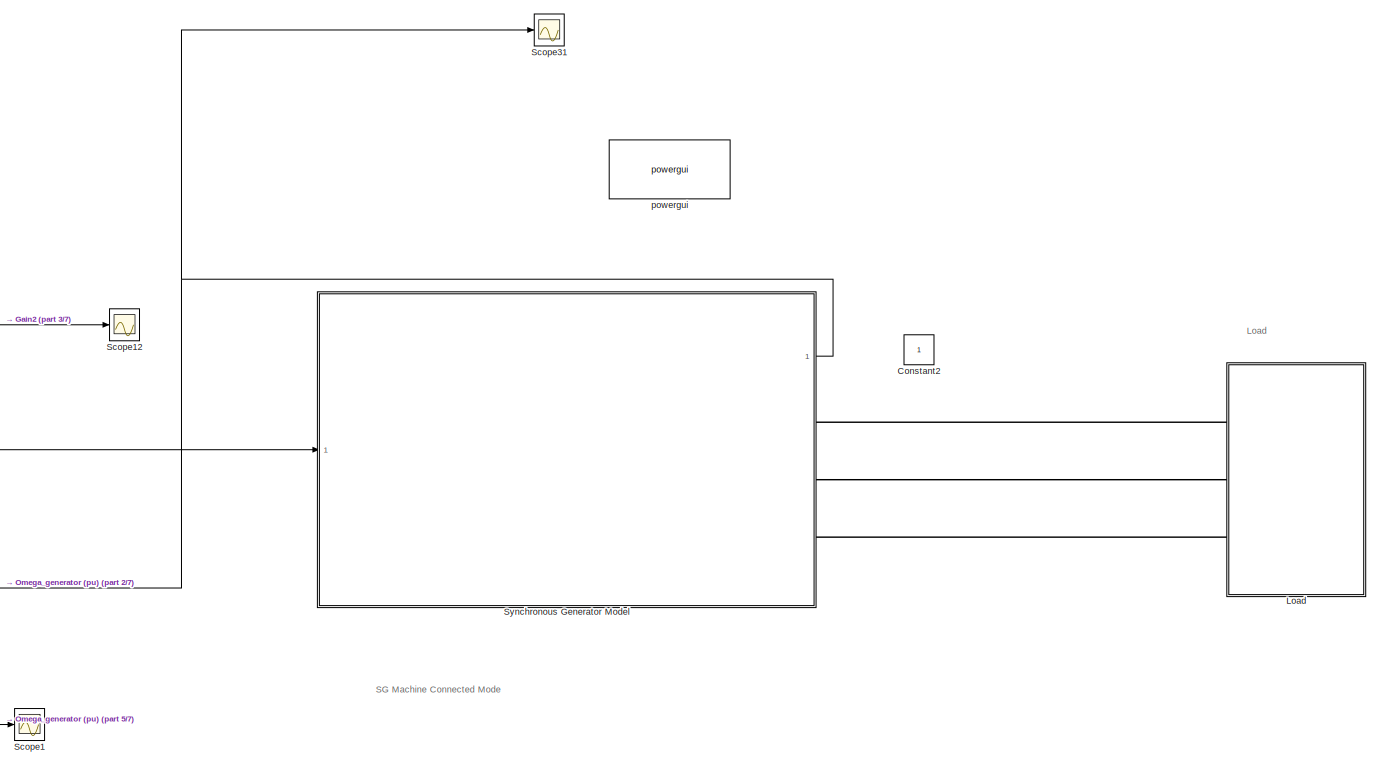
[diagram: root canvas - part 1/7, top right region]
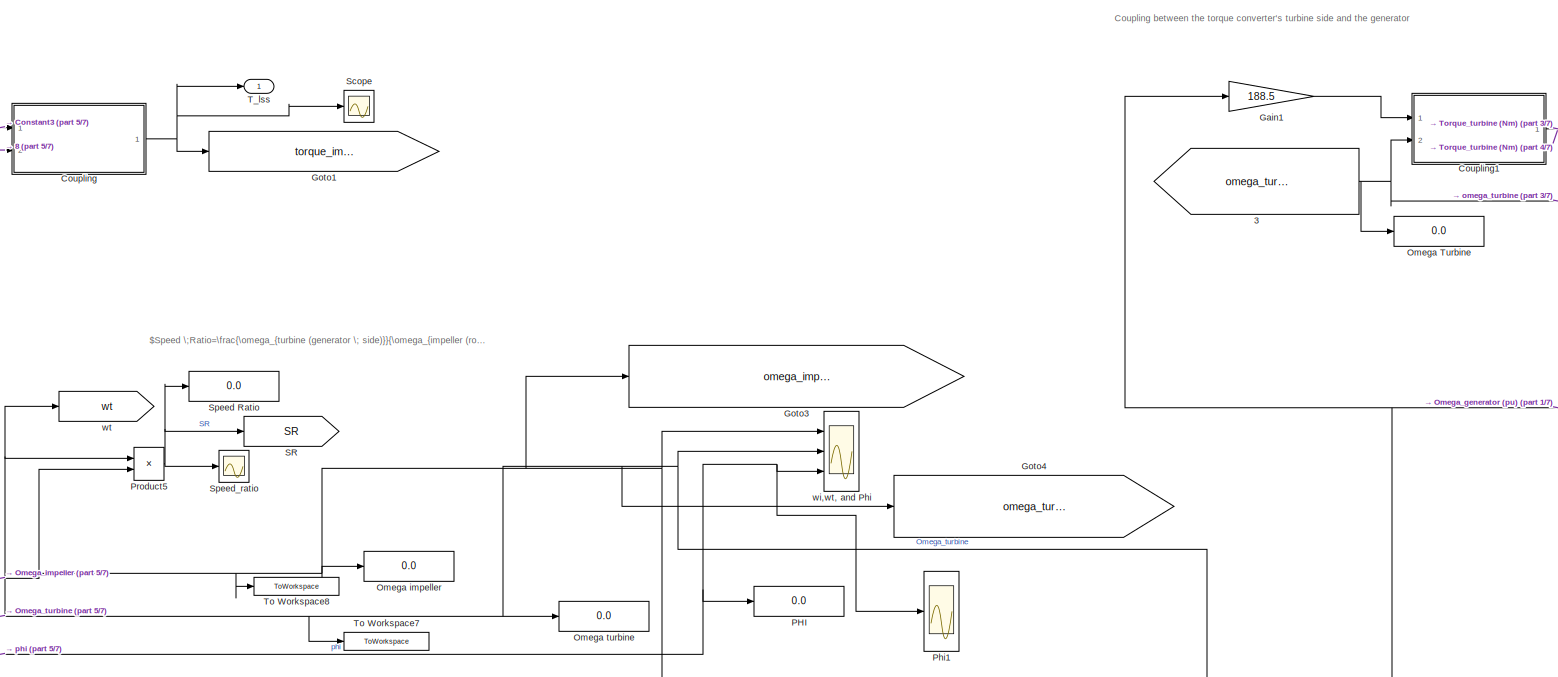
[diagram: root canvas - part 2/7, middle left region]
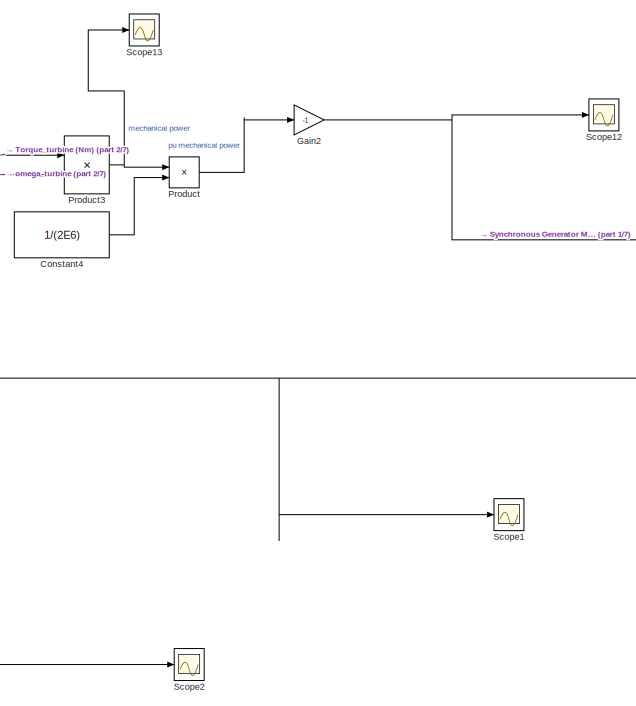
[diagram: root canvas - part 3/7, middle right region]
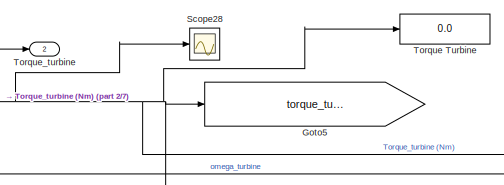
[diagram: root canvas - part 4/7, top center region]
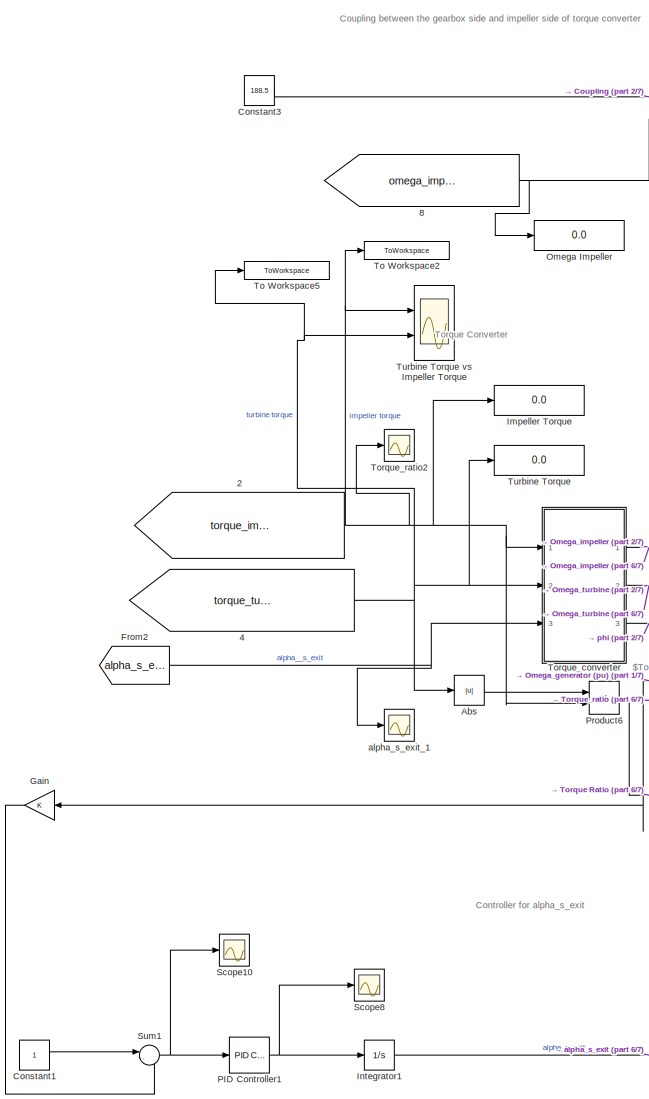
[diagram: root canvas - part 5/7, left side, full height]
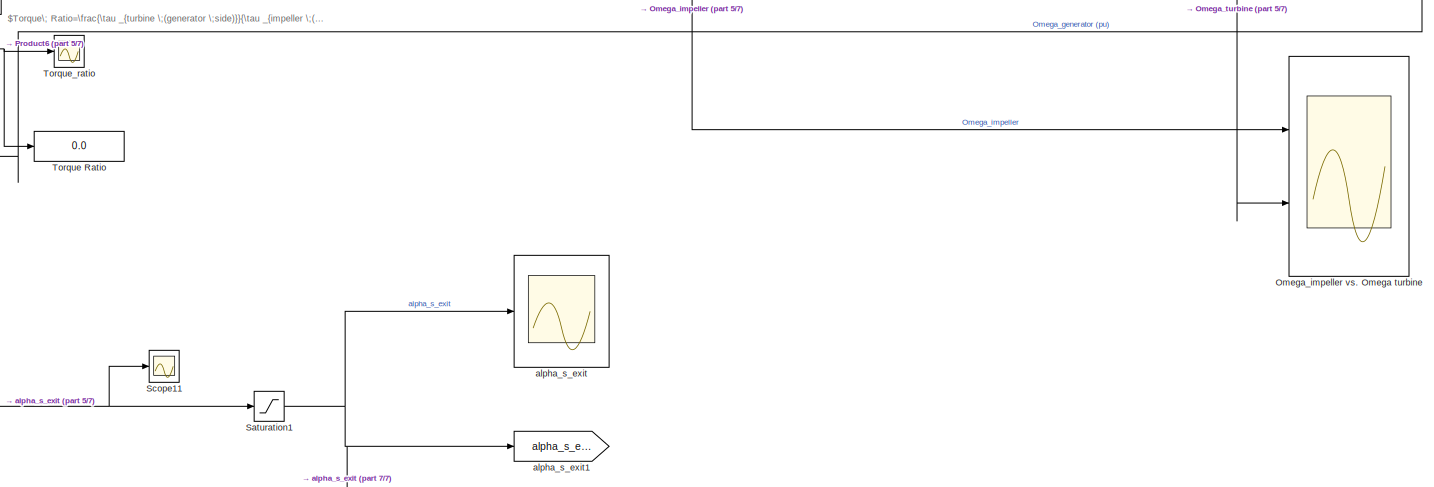
[diagram: root canvas - part 6/7, bottom left region]
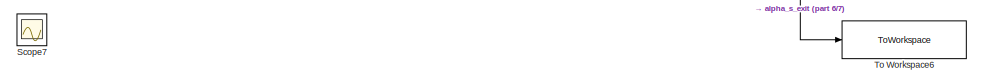
[diagram: root canvas - part 7/7, bottom left region]
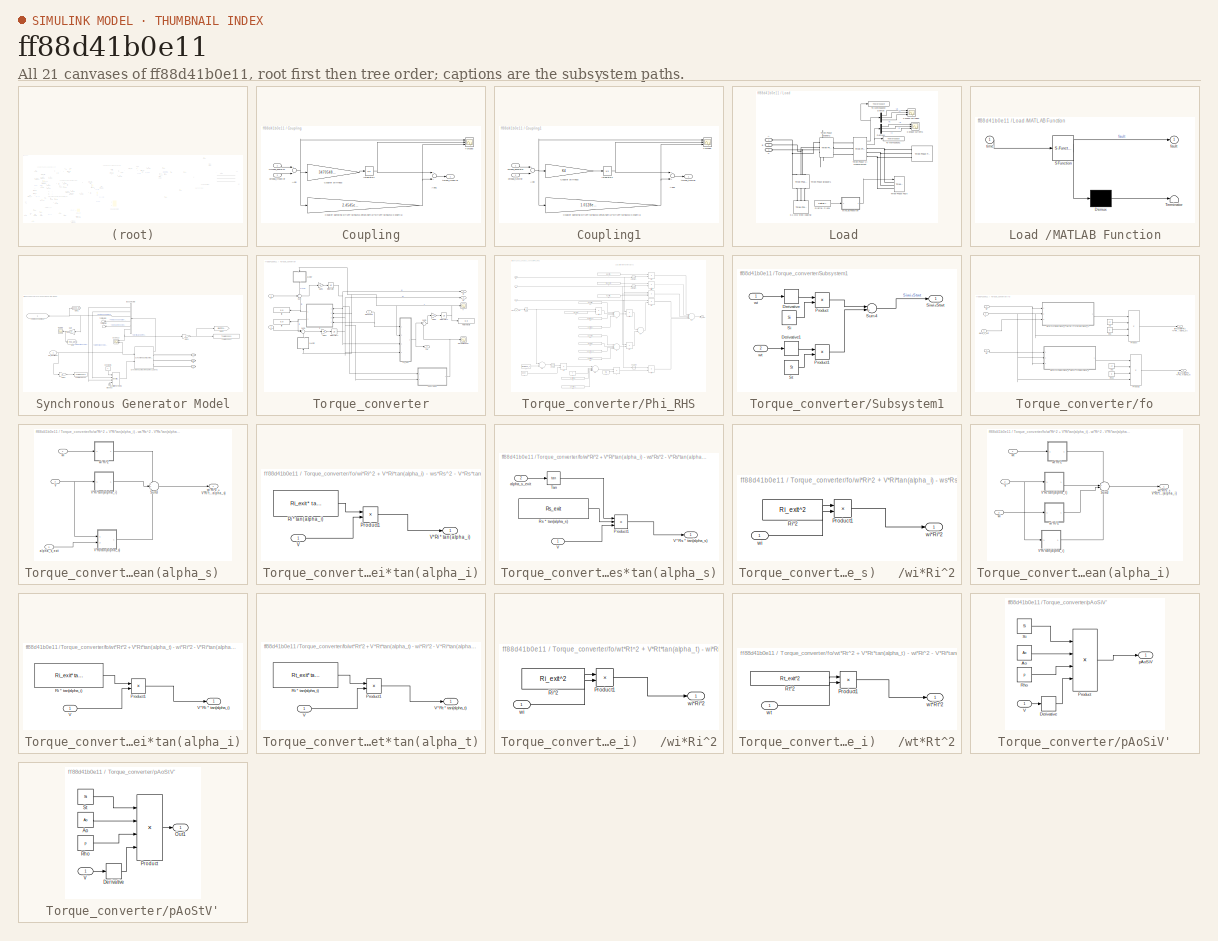
[diagram: thumbnail index - all 21 canvases of the model, root first then tree order]
MODEL slx_ff88d41b0e11
KIND model
CONFIG AbsTol = 1e-2
CONFIG EnableMultiTasking = off
CONFIG FixedStep = auto
CONFIG InitFcn = Ts =2.5e-5;\n\nR_pu = 0.005;\nX_pu = 0.03;\nB_pu = 0.00275;\n\nZ_161 = 259.21;\nZ_44 = 19.36;\nZ_46 = 237.75;\nZ_12_47 = 17.47;\n\nAB_load_data;\nAB_init;
CONFIG MaxStep = 0.005
CONFIG MinStep = auto
CONFIG RelTol = 1e-1
CONFIG SampleTimeConstraint = Unconstrained
CONFIG Solver = VariableStepAuto
CONFIG SolverName = VariableStepAuto
CONFIG StartTime = 0.0
CONFIG StopTime = 50
BLOCK [From]  2
  GotoTag = torque_impeller
BLOCK [From]  3
  GotoTag = omega_turbine
BLOCK [From]  4
  GotoTag = torque_turbine
BLOCK [From]  8
  GotoTag = omega_impeller
BLOCK [Abs] Abs
  SaturateOnIntegerOverflow = off
BLOCK [Constant] Constant1
BLOCK [Constant] Constant2
BLOCK [Constant] Constant3
  Value = 188.5
BLOCK [Constant] Constant4
  Value = 1/(2E6)
BLOCK [SubSystem] Coupling
  Ports = [2, 1]
  RequestExecContextInheritance = off
BLOCK [Sum] Coupling/Add
  InputSameDT = off
  Inputs = +-
  OutDataTypeStr = Inherit: Inherit via internal rule
  Ports = [2, 1]
  SaturateOnIntegerOverflow = off
BLOCK [Sum] Coupling/Add1
  InputSameDT = off
  OutDataTypeStr = Inherit: Inherit via internal rule
  Ports = [2, 1]
  SaturateOnIntegerOverflow = off
BLOCK [Gain] Coupling/Coupler damping DriveTrain5MW.zetaShaft(2)*DriveTrain5MW.Kshaft(1) 
  Gain = 2.4545e+06
  OutDataTypeStr = Inherit: Inherit via internal rule
  ParamDataTypeStr = Inherit: Inherit via internal rule
  SaturateOnIntegerOverflow = off
BLOCK [Gain] Coupling/Coupler stiffness
  Gain = 347054800
  OutDataTypeStr = Inherit: Inherit via internal rule
  ParamDataTypeStr = Inherit: Inherit via internal rule
  SaturateOnIntegerOverflow = off
BLOCK [Integrator] Coupling/Integrator2
  ContinuousStateAttributes = 'torquelowspeedshaft'
  InitialCondition = ti
  Ports = [1, 1]
BLOCK [Inport] Coupling/Omega_gearBox
  IconDisplay = Port number
BLOCK [Scope] Coupling/Torques
  Floating = off
  NumInputPorts = 3
  Ports = [3]
  ScopeSpecificationString = C++SS(StrPVP('Location','[368, 220, 1019, 729]'),StrPVP('Open','off'),MxPVP('AxesTitles',54,'struct(''axes1'',''%<SignalLabel>'',''axes2'',''%<SignalLabel>'',''axes3'',''%<SignalLabel>'')'),MxPVP('ScopeGraphics',57,'struct(''FigureColor'',''[0.905882352941176 0.905882352941176 0.905882352941176]'',''AxesColor'',''[1 1 1]'',''AxesTickColor'',''[0 0 0]'',''LineColors'',''[0 0 1;1 0 1;0 1 1;1 0 0;0 1...<+490ch>
BLOCK [Inport] Coupling/omega_impeller
  IconDisplay = Port number
  Port = 2
BLOCK [Outport] Coupling/torque_impeller
  IconDisplay = Port number
BLOCK [SubSystem] Coupling1
  Ports = [2, 1]
  RequestExecContextInheritance = off
BLOCK [Sum] Coupling1/Add
  InputSameDT = off
  Inputs = +-
  OutDataTypeStr = Inherit: Inherit via internal rule
  Ports = [2, 1]
  SaturateOnIntegerOverflow = off
BLOCK [Sum] Coupling1/Add1
  InputSameDT = off
  OutDataTypeStr = Inherit: Inherit via internal rule
  Ports = [2, 1]
  SaturateOnIntegerOverflow = off
BLOCK [Gain] Coupling1/Coupler damping DriveTrain5MW.zetaShaft(2)*DriveTrain5MW.Kshaft(1) 
  Gain = 1.0128e+05
  OutDataTypeStr = Inherit: Inherit via internal rule
  ParamDataTypeStr = Inherit: Inherit via internal rule
  SaturateOnIntegerOverflow = off
BLOCK [Gain] Coupling1/Coupler stiffness
  Gain = K4
  OutDataTypeStr = Inherit: Inherit via internal rule
  ParamDataTypeStr = Inherit: Inherit via internal rule
  SaturateOnIntegerOverflow = off
BLOCK [Integrator] Coupling1/Integrator2
  ContinuousStateAttributes = 'torquelowspeedshaft'
  InitialCondition = tt
  Ports = [1, 1]
BLOCK [Scope] Coupling1/Torques
  Floating = off
  NumInputPorts = 3
  Ports = [3]
  ScopeSpecificationString = C++SS(StrPVP('Location','[368, 220, 1019, 729]'),StrPVP('Open','off'),MxPVP('AxesTitles',54,'struct(''axes1'',''%<SignalLabel>'',''axes2'',''%<SignalLabel>'',''axes3'',''%<SignalLabel>'')'),MxPVP('ScopeGraphics',57,'struct(''FigureColor'',''[0.905882352941176 0.905882352941176 0.905882352941176]'',''AxesColor'',''[1 1 1]'',''AxesTickColor'',''[0 0 0]'',''LineColors'',''[0 0 1;1 0 1;0 1 1;1 0 0;0 1...<+490ch>
BLOCK [Inport] Coupling1/omega_generator
  IconDisplay = Port number
BLOCK [Inport] Coupling1/omega_turbine
  IconDisplay = Port number
  Port = 2
BLOCK [Outport] Coupling1/torque_turbine
  IconDisplay = Port number
BLOCK [From] From2
  GotoTag = alpha_s_exit
BLOCK [Gain] Gain
  OutDataTypeStr = Inherit: Inherit via internal rule
  ParamDataTypeStr = Inherit: Inherit via internal rule
  SaturateOnIntegerOverflow = off
BLOCK [Gain] Gain1
  Gain = 188.5
  OutDataTypeStr = Inherit: Inherit via internal rule
  ParamDataTypeStr = Inherit: Inherit via internal rule
  SaturateOnIntegerOverflow = off
BLOCK [Gain] Gain2
  Gain = -1
  OutDataTypeStr = Inherit: Inherit via internal rule
  ParamDataTypeStr = Inherit: Inherit via internal rule
  SaturateOnIntegerOverflow = off
BLOCK [Goto] Goto1
  GotoTag = torque_impeller
BLOCK [Goto] Goto3
  GotoTag = omega_impeller
  IconDisplay = Signal name
BLOCK [Goto] Goto4
  GotoTag = omega_turbine
  IconDisplay = Signal name
BLOCK [Goto] Goto5
  GotoTag = torque_turbine
BLOCK [Display] Impeller Torque
  Decimation = 1
  Ports = [1]
BLOCK [Integrator] Integrator1
  InitialCondition = alpha_s_exit_0
  Ports = [1, 1]
BLOCK [SubSystem] Load 
  Ports = [0, 0, 0, 0, 0, 3]
  RequestExecContextInheritance = off
BLOCK [Reference] Load /    REF=powerlib/Elements/Three-Phase
Parallel RLC Load
  AttributesFormatString = \n
  Ports = [0, 0, 0, 0, 0, 3]
  SourceBlock = powerlib/Elements/Three-Phase\nParallel RLC Load
  SourceProductBaseCode = PS
  SourceType = Three-Phase Parallel RLC Load
BLOCK [Reference] Load /0.1 MW step loading  REF=powerlib/Elements/Three-Phase
Parallel RLC Load
  AttributesFormatString = \n
  Ports = [0, 0, 0, 0, 0, 3]
  SourceBlock = powerlib/Elements/Three-Phase\nParallel RLC Load
  SourceProductBaseCode = PS
  SourceType = Three-Phase Parallel RLC Load
BLOCK [Scope] Load /3 phase currents
  Floating = off
  NumInputPorts = 3
  Ports = [3]
  ScopeSpecificationString = Simulink.scopes.TimeScopeBlockCfg('CurrentConfiguration', extmgr.ConfigurationSet(extmgr.Configuration('Core','General UI',true),extmgr.Configuration('Core','Source UI',true),extmgr.Configuration('Sources','WiredSimulink',true,'DataLoggingVariableName','ScopeData2'),extmgr.Configuration('Visuals','Time Domain',true,'SerializedDisplays',{struct('MinYLimReal','-2415.45614','MaxYLimReal','2512.98348'...<+1480ch>
BLOCK [Scope] Load /3 phase voltages
  Floating = off
  NumInputPorts = 3
  Ports = [3]
  ScopeSpecificationString = Simulink.scopes.TimeScopeBlockCfg('CurrentConfiguration', extmgr.ConfigurationSet(extmgr.Configuration('Core','General UI',true),extmgr.Configuration('Core','Source UI',true),extmgr.Configuration('Sources','WiredSimulink',true,'DataLoggingVariableName','ScopeData1'),extmgr.Configuration('Visuals','Time Domain',true,'SerializedDisplays',{struct('MinYLimReal','-3898.0324','MaxYLimReal','4994.66703',...<+1475ch>
BLOCK [PMIOPort] Load /A
  Side = Left
BLOCK [PMIOPort] Load /B
  Port = 2
  Side = Left
BLOCK [PMIOPort] Load /C
  Port = 3
  Side = Left
BLOCK [Demux] Load /Demux
  DisplayOption = bar
  Outputs = 3
  Ports = [1, 3]
BLOCK [Demux] Load /Demux1
  DisplayOption = bar
  Outputs = 3
  Ports = [1, 3]
BLOCK [DigitalClock] Load /Digital Clock
  SampleTime = Ts
BLOCK [SubSystem] Load /MATLAB Function
  ErrorFcn = Stateflow.Translate.translate
  PermitHierarchicalResolution = ExplicitOnly
  Ports = [1, 1]
  RequestExecContextInheritance = off
  SFBlockType = MATLAB Function
  TreatAsAtomicUnit = on
BLOCK [Demux] Load /MATLAB Function/ Demux 
  Outputs = 1
  Ports = [1, 1]
BLOCK [S-Function] Load /MATLAB Function/ SFunction 
  EnableBusSupport = on
  FunctionName = sf_sfun
  PortCounts = [1 2]
  Ports = [1, 2]
  SFcnIsStateOwnerBlock = off
  SFunctionDeploymentMode = off
  Tag = Stateflow S-Function 2
BLOCK [Terminator] Load /MATLAB Function/ Terminator 
BLOCK [Outport] Load /MATLAB Function/fault
  IconDisplay = Port number
BLOCK [Inport] Load /MATLAB Function/time
  IconDisplay = Port number
BLOCK [Reference] Load /Three-Phase Breaker1  REF=powerlib/Elements/Three-Phase Breaker
  Ports = [0, 0, 0, 0, 0, 3, 3]
  SourceBlock = powerlib/Elements/Three-Phase Breaker
  SourceProductBaseCode = PS
  SourceType = Three-Phase Breaker
BLOCK [Reference] Load /Three-Phase Breaker2  REF=powerlib/Elements/Three-Phase Breaker
  Ports = [0, 0, 0, 0, 0, 3, 3]
  SourceBlock = powerlib/Elements/Three-Phase Breaker
  SourceProductBaseCode = PS
  SourceType = Three-Phase Breaker
BLOCK [Reference] Load /Three-Phase Fault  REF=powerlib/Elements/Three-Phase Fault
  Ports = [1, 0, 0, 0, 0, 3]
  SourceBlock = powerlib/Elements/Three-Phase Fault
  SourceProductBaseCode = PS
  SourceProductName = Simscape Electrical
  SourceType = Three-Phase Fault
BLOCK [Reference] Load /Three-Phase V-I Measurement  REF=powerlib/Measurements/Three-Phase
V-I Measurement
  Ports = [0, 2, 0, 0, 0, 3, 3]
  SourceBlock = powerlib/Measurements/Three-Phase\nV-I Measurement
  SourceProductBaseCode = PS
  SourceProductName = Simscape Electrical
  SourceType = Three-Phase VI Measurement
BLOCK [ToWorkspace] Load /To Workspace1
  MaxDataPoints = inf
  Ports = [1]
  SampleTime = -1
  VariableName = Current
BLOCK [ToWorkspace] Load /To Workspace2
  MaxDataPoints = inf
  Ports = [1]
  SampleTime = -1
  VariableName = Voltage
BLOCK [Display] Omega Impeller
  Decimation = 1
  Ports = [1]
BLOCK [Display] Omega Turbine
  Decimation = 1
  Ports = [1]
BLOCK [Display] Omega impeller
  Decimation = 1
  Ports = [1]
BLOCK [Display] Omega turbine
  Decimation = 1
  Ports = [1]
BLOCK [Scope] Omega_impeller vs. Omega turbine
  Floating = off
  NumInputPorts = 2
  Ports = [2]
  ScopeSpecificationString = Simulink.scopes.TimeScopeBlockCfg('CurrentConfiguration', extmgr.ConfigurationSet(extmgr.Configuration('Core','General UI',true),extmgr.Configuration('Core','Source UI',true),extmgr.Configuration('Sources','WiredSimulink',true,'DataLoggingVariableName','ScopeData1'),extmgr.Configuration('Visuals','Time Domain',true,'SerializedDisplays',{struct('MinYLimReal','177.96462','MaxYLimReal','193.9744','YL...<+1638ch>
BLOCK [Display] PHI
  Decimation = 1
  Ports = [1]
BLOCK [Reference] PID Controller1  REF=simulink/Continuous/PID Controller
  Ports = [1, 1]
  SourceBlock = simulink/Continuous/PID Controller
  SourceProductBaseCode = SL
  SourceProductName = Simulink
  SourceType = PID 1dof
BLOCK [Scope] Phi1
  Floating = off
  NumInputPorts = 1
  Ports = [1]
  ScopeSpecificationString = Simulink.scopes.TimeScopeBlockCfg('CurrentConfiguration', extmgr.ConfigurationSet(extmgr.Configuration('Core','General UI',true),extmgr.Configuration('Core','Source UI',true),extmgr.Configuration('Sources','WiredSimulink',true,'DataLoggingVariableName','ScopeData2'),extmgr.Configuration('Visuals','Time Domain',true,'SerializedDisplays',{struct('MinYLimReal','-0.00519','MaxYLimReal','0.04672','YLab...<+1609ch>
BLOCK [Product] Product
  InputSameDT = off
  OutDataTypeStr = Inherit: Inherit via internal rule
  Ports = [2, 1]
  RndMeth = Floor
  SaturateOnIntegerOverflow = off
BLOCK [Product] Product3
  InputSameDT = off
  Inputs = **
  OutDataTypeStr = Inherit: Inherit via internal rule
  Ports = [2, 1]
  RndMeth = Floor
  SaturateOnIntegerOverflow = off
BLOCK [Product] Product5
  InputSameDT = off
  Inputs = */
  OutDataTypeStr = Inherit: Inherit via internal rule
  Ports = [2, 1]
  RndMeth = Floor
  SaturateOnIntegerOverflow = off
BLOCK [Product] Product6
  InputSameDT = off
  Inputs = */
  OutDataTypeStr = Inherit: Inherit via internal rule
  Ports = [2, 1]
  RndMeth = Floor
  SaturateOnIntegerOverflow = off
BLOCK [Goto] SR
  GotoTag = SR
BLOCK [Saturate] Saturation1
  InputPortMap = u0
  LowerLimit = 1.04
  Ports = [1, 1]
  UpperLimit = 1.28
BLOCK [Scope] Scope
  Floating = off
  NumInputPorts = 1
  Ports = [1]
  ScopeSpecificationString = Simulink.scopes.TimeScopeBlockCfg('CurrentConfiguration', extmgr.ConfigurationSet(extmgr.Configuration('Core','General UI',true),extmgr.Configuration('Core','Source UI',true),extmgr.Configuration('Sources','WiredSimulink',true,'DataLoggingVariableName','ScopeData1'),extmgr.Configuration('Visuals','Time Domain',true,'SerializedDisplays',{struct('MinYLimReal','8360.97994','MaxYLimReal','11287.36835'...<+1464ch>
BLOCK [Scope] Scope1
  Floating = off
  NumInputPorts = 1
  Ports = [1]
  ScopeSpecificationString = Simulink.scopes.TimeScopeBlockCfg('CurrentConfiguration', extmgr.ConfigurationSet(extmgr.Configuration('Core','General UI',true),extmgr.Configuration('Core','Source UI',true),extmgr.Configuration('Sources','WiredSimulink',true,'DataLoggingVariableName','ScopeData17'),extmgr.Configuration('Visuals','Time Domain',true,'SerializedDisplays',{struct('MinYLimReal','0.03616','MaxYLimReal','0.08256','YLab...<+1551ch>
BLOCK [Scope] Scope10
  Floating = off
  NumInputPorts = 1
  Ports = [1]
  ScopeSpecificationString = Simulink.scopes.TimeScopeBlockCfg('CurrentConfiguration', extmgr.ConfigurationSet(extmgr.Configuration('Core','General UI',true),extmgr.Configuration('Core','Source UI',true),extmgr.Configuration('Sources','WiredSimulink',true,'DataLoggingVariableName','ScopeData5'),extmgr.Configuration('Visuals','Time Domain',true,'SerializedDisplays',{struct('MinYLimReal','-0.00988','MaxYLimReal','0.00118','YLab...<+1388ch>
BLOCK [Scope] Scope11
  Floating = off
  NumInputPorts = 1
  Ports = [1]
  ScopeSpecificationString = Simulink.scopes.TimeScopeBlockCfg('CurrentConfiguration', extmgr.ConfigurationSet(extmgr.Configuration('Core','General UI',true),extmgr.Configuration('Core','Source UI',true),extmgr.Configuration('Sources','WiredSimulink',true,'DataLoggingVariableName','ScopeData6'),extmgr.Configuration('Visuals','Time Domain',true,'SerializedDisplays',{struct('MinYLimReal','-30.72616','MaxYLimReal','3.96944','YLa...<+1427ch>
BLOCK [Scope] Scope12
  Floating = off
  NumInputPorts = 1
  Ports = [1]
  ScopeSpecificationString = Simulink.scopes.TimeScopeBlockCfg('CurrentConfiguration', extmgr.ConfigurationSet(extmgr.Configuration('Core','General UI',true),extmgr.Configuration('Core','Source UI',true),extmgr.Configuration('Sources','WiredSimulink',true,'DataLoggingVariableName','ScopeData15'),extmgr.Configuration('Visuals','Time Domain',true,'SerializedDisplays',{struct('MinYLimReal','-1100951461995578713225337337102622990...<+1933ch>
BLOCK [Scope] Scope13
  Floating = off
  NumInputPorts = 1
  Ports = [1]
  ScopeSpecificationString = Simulink.scopes.TimeScopeBlockCfg('CurrentConfiguration', extmgr.ConfigurationSet(extmgr.Configuration('Core','General UI',true),extmgr.Configuration('Core','Source UI',true),extmgr.Configuration('Sources','WiredSimulink',true,'DataLoggingVariableName','ScopeData13'),extmgr.Configuration('Visuals','Time Domain',true,'SerializedDisplays',{struct('MinYLimReal','-2299840.97442','MaxYLimReal','-169398...<+1625ch>
BLOCK [Scope] Scope2
  Floating = off
  NumInputPorts = 1
  Ports = [1]
  ScopeSpecificationString = Simulink.scopes.TimeScopeBlockCfg('CurrentConfiguration', extmgr.ConfigurationSet(extmgr.Configuration('Core','General UI',true),extmgr.Configuration('Core','Source UI',true),extmgr.Configuration('Sources','WiredSimulink',true,'DataLoggingVariableName','ScopeData18'),extmgr.Configuration('Visuals','Time Domain',true,'SerializedDisplays',{struct('MinYLimReal','0.03616','MaxYLimReal','0.08256','YLab...<+1551ch>
BLOCK [Scope] Scope28
  Floating = off
  NumInputPorts = 1
  Ports = [1]
  ScopeSpecificationString = Simulink.scopes.TimeScopeBlockCfg('CurrentConfiguration', extmgr.ConfigurationSet(extmgr.Configuration('Core','General UI',true),extmgr.Configuration('Core','Source UI',true),extmgr.Configuration('Sources','WiredSimulink',true,'DataLoggingVariableName','ScopeData14'),extmgr.Configuration('Visuals','Time Domain',true,'SerializedDisplays',{struct('MinYLimReal','-2925.80634','MaxYLimReal','2140.3992'...<+1587ch>
BLOCK [Scope] Scope31
  Floating = off
  NumInputPorts = 1
  Ports = [1]
  ScopeSpecificationString = Simulink.scopes.TimeScopeBlockCfg('CurrentConfiguration', extmgr.ConfigurationSet(extmgr.Configuration('Core','General UI',true),extmgr.Configuration('Core','Source UI',true),extmgr.Configuration('Sources','WiredSimulink',true,'DataLoggingVariableName','ScopeData16'),extmgr.Configuration('Visuals','Time Domain',true,'SerializedDisplays',{struct('MinYLimReal','0.99527','MaxYLimReal','1.00082','YLab...<+1565ch>
BLOCK [Scope] Scope7
  Floating = off
  NumInputPorts = 1
  Ports = [1]
  ScopeSpecificationString = Simulink.scopes.TimeScopeBlockCfg('CurrentConfiguration', extmgr.ConfigurationSet(extmgr.Configuration('Core','General UI',true),extmgr.Configuration('Core','Source UI',true),extmgr.Configuration('Sources','WiredSimulink',true,'DataLoggingVariableName','ScopeData10'),extmgr.Configuration('Visuals','Time Domain',true,'SerializedDisplays',{struct('MinYLimReal','0.99882','MaxYLimReal','1.00988','YLab...<+1425ch>
BLOCK [Scope] Scope8
  Floating = off
  NumInputPorts = 1
  Ports = [1]
  ScopeSpecificationString = Simulink.scopes.TimeScopeBlockCfg('CurrentConfiguration', extmgr.ConfigurationSet(extmgr.Configuration('Core','General UI',true),extmgr.Configuration('Core','Source UI',true),extmgr.Configuration('Sources','WiredSimulink',true,'DataLoggingVariableName','ScopeData11'),extmgr.Configuration('Visuals','Time Domain',true,'SerializedDisplays',{struct('MinYLimReal','-1.32229','MaxYLimReal','0.70344','YLa...<+1445ch>
BLOCK [Display] Speed Ratio
  Decimation = 1
  Ports = [1]
BLOCK [Scope] Speed_ratio
  Floating = off
  NumInputPorts = 1
  Ports = [1]
  ScopeSpecificationString = Simulink.scopes.TimeScopeBlockCfg('CurrentConfiguration', extmgr.ConfigurationSet(extmgr.Configuration('Core','General UI',true),extmgr.Configuration('Core','Source UI',true),extmgr.Configuration('Sources','WiredSimulink',true,'DataLoggingVariableName','ScopeData5'),extmgr.Configuration('Visuals','Time Domain',true,'SerializedDisplays',{struct('MinYLimReal','-0.53288','MaxYLimReal','0.73563','YLab...<+1560ch>
BLOCK [Sum] Sum1
  IconShape = round
  InputSameDT = off
  Inputs = |-+
  OutDataTypeStr = Inherit: Inherit via internal rule
  Ports = [2, 1]
  SaturateOnIntegerOverflow = off
BLOCK [SubSystem] Synchronous Generator Model
  Ports = [1, 1, 0, 0, 0, 0, 3]
  RequestExecContextInheritance = off
BLOCK [Outport] Synchronous Generator Model/<Rotor speed  wm  (pu)>
  IconDisplay = Port number and signal name
BLOCK [PMIOPort] Synchronous Generator Model/A
  Side = Right
BLOCK [PMIOPort] Synchronous Generator Model/B
  Port = 2
  Side = Right
BLOCK [BusSelector] Synchronous Generator Model/Bus Selector3
  OutputAsBus = off
  OutputSignals = dq0 components.Stator voltage  vq (pu),dq0 components.Stator voltage  vd (pu),Mechanical.Rotor speed  wm  (pu),Mechanical.Rotor speed deviation  dw (pu),Output active power   Peo (pu),Mechanical.Electrical power  Pe (pu)
  Ports = [1, 6]
BLOCK [PMIOPort] Synchronous Generator Model/C
  Port = 3
  Side = Right
BLOCK [Constant] Synchronous Generator Model/Constant1
BLOCK [Reference] Synchronous Generator Model/Excitation System2  REF=sps_avr/Excitation System
  Ports = [4, 1]
  SourceBlock = sps_avr/Excitation System
  SourceProductBaseCode = PS
  SourceType = Excitation System
BLOCK [Gain] Synchronous Generator Model/Gain
  Gain = 377/(2*pi)
  OutDataTypeStr = Inherit: Inherit via internal rule
  ParamDataTypeStr = Inherit: Inherit via internal rule
  SaturateOnIntegerOverflow = off
BLOCK [Gain] Synchronous Generator Model/Gain1
  Gain = 2
  OutDataTypeStr = Inherit: Inherit via internal rule
  ParamDataTypeStr = Inherit: Inherit via internal rule
  SaturateOnIntegerOverflow = off
BLOCK [Gain] Synchronous Generator Model/Gain2
  Gain = 2
  OutDataTypeStr = Inherit: Inherit via internal rule
  ParamDataTypeStr = Inherit: Inherit via internal rule
  SaturateOnIntegerOverflow = off
BLOCK [Goto] Synchronous Generator Model/Goto
  GotoTag = freq_gen
  TagVisibility = global
BLOCK [Goto] Synchronous Generator Model/Goto1
  GotoTag = speed_isol
  TagVisibility = global
BLOCK [Goto] Synchronous Generator Model/Goto2
  GotoTag = Electrical_Power
  TagVisibility = global
BLOCK [Ground] Synchronous Generator Model/Ground3
BLOCK [Inport] Synchronous Generator Model/Pm_input (in pu)
  IconDisplay = Port number and signal name
BLOCK [Scope] Synchronous Generator Model/Scope
  Floating = off
  NumInputPorts = 1
  Ports = [1]
  ScopeSpecificationString = Simulink.scopes.TimeScopeBlockCfg('CurrentConfiguration', extmgr.ConfigurationSet(extmgr.Configuration('Core','General UI',true),extmgr.Configuration('Core','Source UI',true),extmgr.Configuration('Sources','WiredSimulink',true,'DataLoggingVariableName','ScopeData1'),extmgr.Configuration('Visuals','Time Domain',true,'SerializedDisplays',{struct('MinYLimReal','52.329','MaxYLimReal','66.3128','YLabel...<+1441ch>
BLOCK [Scope] Synchronous Generator Model/Scope22
  Floating = off
  NumInputPorts = 2
  Ports = [2]
  ScopeSpecificationString = Simulink.scopes.TimeScopeBlockCfg('CurrentConfiguration', extmgr.ConfigurationSet(extmgr.Configuration('Core','General UI',true,'FigureColor',[1 1 1]),extmgr.Configuration('Core','Source UI',true),extmgr.Configuration('Sources','WiredSimulink',true,'DataLoggingVariableName','ScopeData9'),extmgr.Configuration('Visuals','Time Domain',true,'SerializedDisplays',{struct('MinYLimReal','0.01693','MaxYLim...<+1728ch>
BLOCK [Reference] Synchronous Generator Model/Synchronous Machine 8.9 MVA 13.8 kV2  REF=powerlib/Machines/Synchronous Machine
pu Standard
  AttributesFormatString = \n\n
  Ports = [2, 1, 0, 0, 0, 0, 3]
  SourceBlock = powerlib/Machines/Synchronous Machine\npu Standard
  SourceProductBaseCode = PS
  SourceType = Synchronous Machine
BLOCK [Terminator] Synchronous Generator Model/Terminator
BLOCK [Terminator] Synchronous Generator Model/Terminator1
BLOCK [ToWorkspace] Synchronous Generator Model/To Workspace
  FixptAsFi = on
  MaxDataPoints = inf
  Ports = [1]
  SampleTime = 1e-2
  SaveFormat = Timeseries
  VariableName = ElectricalPowerOutFromGenerator
BLOCK [ToWorkspace] Synchronous Generator Model/To Workspace1
  FixptAsFi = on
  MaxDataPoints = inf
  Ports = [1]
  SampleTime = -1
  SaveFormat = Timeseries
  VariableName = MechanicalPowerInputToGenerator
BLOCK [Outport] T_lss
  IconDisplay = Port number
  InitialOutput = Tlss0
BLOCK [ToWorkspace] To Workspace2
  MaxDataPoints = inf
  Ports = [1]
  SampleTime = 1e-2
  VariableName = torque_impeller
BLOCK [ToWorkspace] To Workspace5
  MaxDataPoints = inf
  Ports = [1]
  SampleTime = 1e-2
  VariableName = torque_turbine
BLOCK [ToWorkspace] To Workspace6
  MaxDataPoints = inf
  Ports = [1]
  SampleTime = 1e-2
  VariableName = alpha_s_exit
BLOCK [ToWorkspace] To Workspace7
  MaxDataPoints = inf
  Ports = [1]
  SampleTime = 1e-2
  VariableName = Omega_turbine
BLOCK [ToWorkspace] To Workspace8
  MaxDataPoints = inf
  Ports = [1]
  SampleTime = 1e-2
  VariableName = Omega_impeller
BLOCK [Display] Torque Ratio
  Decimation = 1
  Ports = [1]
BLOCK [Display] Torque Turbine
  Decimation = 1
  Ports = [1]
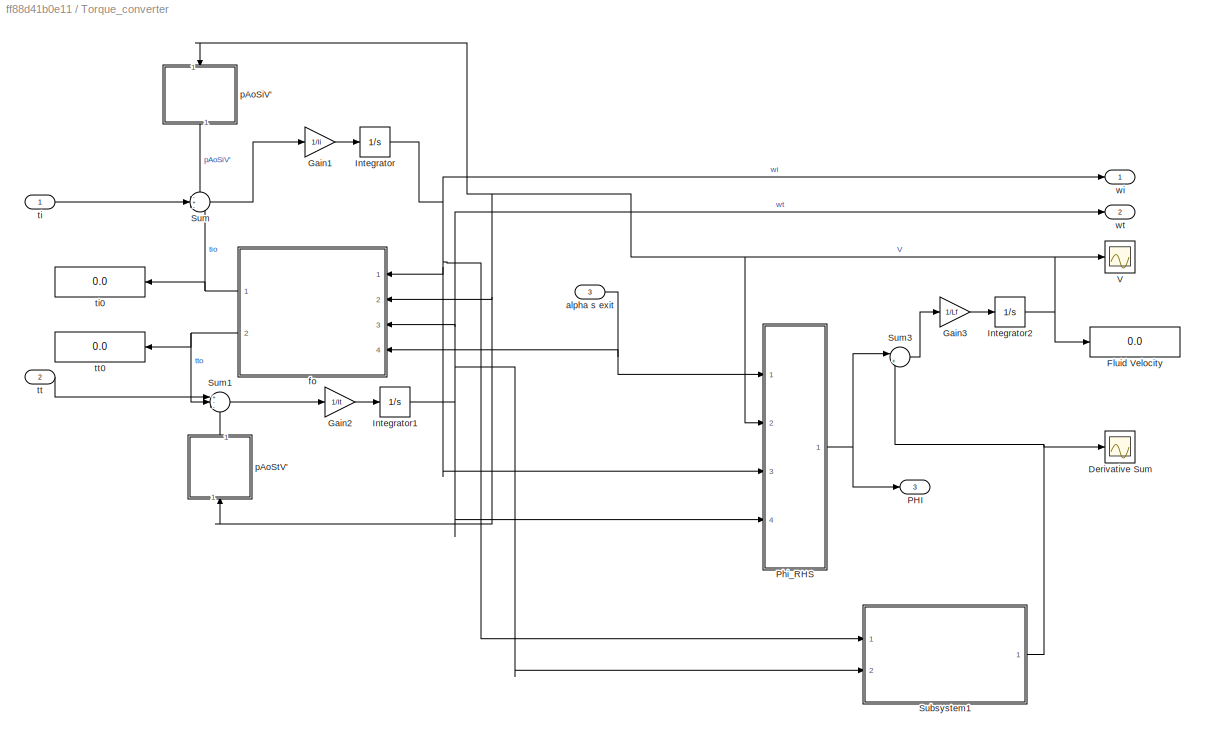
BLOCK [SubSystem] Torque_converter
  Ports = [3, 3]
  RequestExecContextInheritance = off
BLOCK [Scope] Torque_converter/Derivative Sum
  Floating = off
  NumInputPorts = 1
  Ports = [1]
  ScopeSpecificationString = Simulink.scopes.TimeScopeBlockCfg('CurrentConfiguration', extmgr.ConfigurationSet(extmgr.Configuration('Core','General UI',true),extmgr.Configuration('Core','Source UI',true),extmgr.Configuration('Sources','WiredSimulink',true,'DataLoggingVariableName','ScopeData1'),extmgr.Configuration('Visuals','Time Domain',true,'SerializedDisplays',{struct('MinYLimReal','-1814.204','MaxYLimReal','1794.09886','...<+1454ch>
BLOCK [Display] Torque_converter/Fluid Velocity
  Decimation = 1
  Ports = [1]
BLOCK [Gain] Torque_converter/Gain1
  Gain = 1/Ii
  OutDataTypeStr = Inherit: Inherit via internal rule
  ParamDataTypeStr = Inherit: Inherit via internal rule
  SaturateOnIntegerOverflow = off
BLOCK [Gain] Torque_converter/Gain2
  Gain = 1/It
  OutDataTypeStr = Inherit: Inherit via internal rule
  ParamDataTypeStr = Inherit: Inherit via internal rule
  SaturateOnIntegerOverflow = off
BLOCK [Gain] Torque_converter/Gain3
  Gain = 1/Lf
  OutDataTypeStr = Inherit: Inherit via internal rule
  ParamDataTypeStr = Inherit: Inherit via internal rule
  SaturateOnIntegerOverflow = off
BLOCK [Integrator] Torque_converter/Integrator
  InitialCondition = wi_0
  Ports = [1, 1]
BLOCK [Integrator] Torque_converter/Integrator1
  InitialCondition = wt_0
  Ports = [1, 1]
BLOCK [Integrator] Torque_converter/Integrator2
  InitialCondition = V_0
  Ports = [1, 1]
BLOCK [Outport] Torque_converter/PHI
  IconDisplay = Port number
  Port = 3
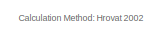
[diagram: Torque_converter/Phi_RHS - part 1/4, top center region]
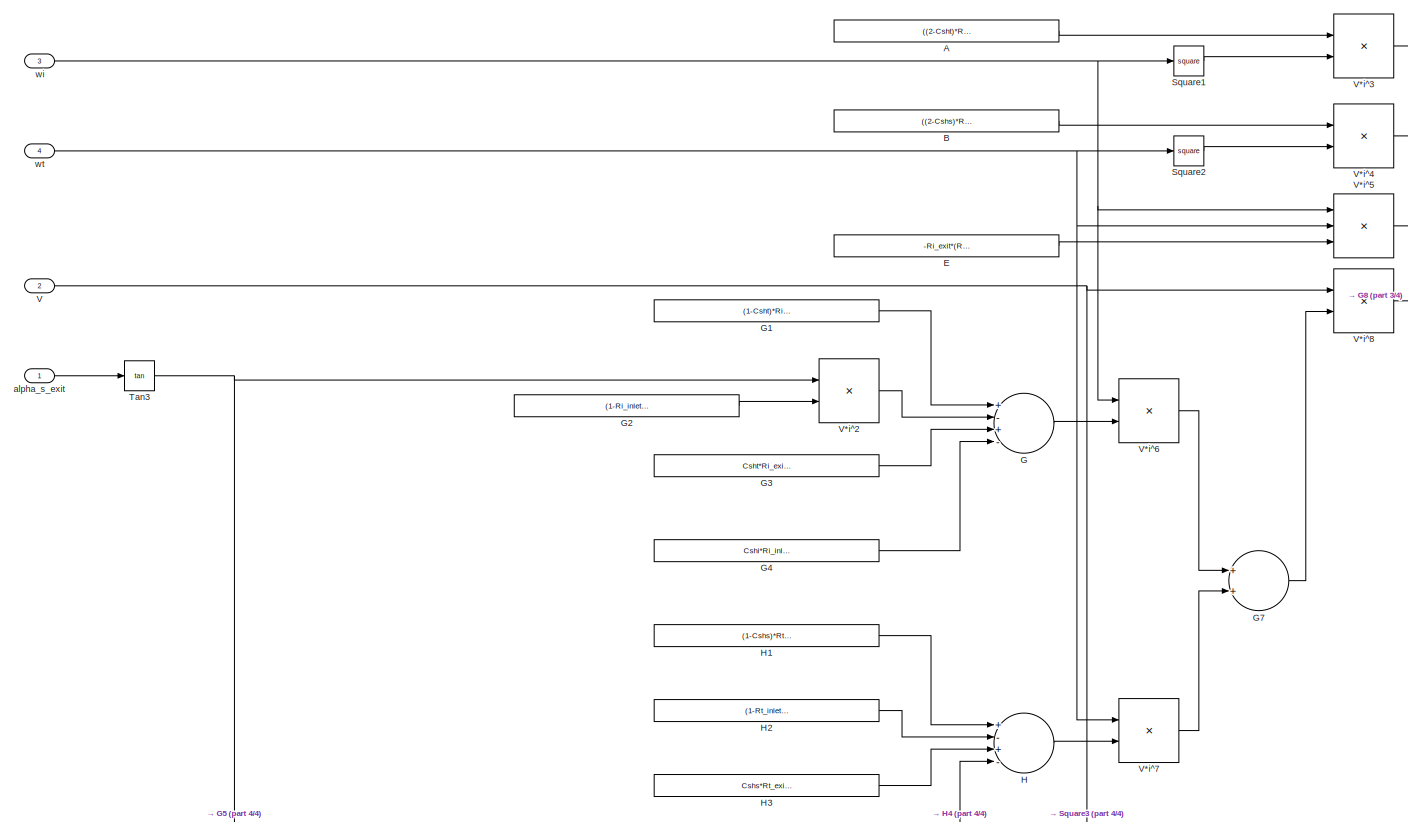
[diagram: Torque_converter/Phi_RHS - part 2/4, full width, middle band]
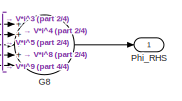
[diagram: Torque_converter/Phi_RHS - part 3/4, middle right region]
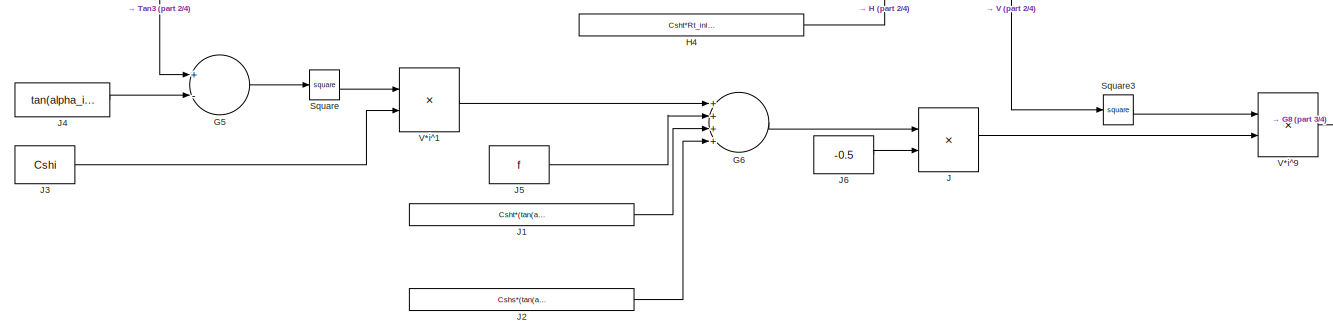
[diagram: Torque_converter/Phi_RHS - part 4/4, bottom center region]
BLOCK [SubSystem] Torque_converter/Phi_RHS
  Ports = [4, 1]
  RequestExecContextInheritance = off
BLOCK [Constant] Torque_converter/Phi_RHS/A
  Value = ((2-Csht)*Ri_exit^2 - Cshi*Ri_inlet^2)/2
BLOCK [Constant] Torque_converter/Phi_RHS/B
  Value = ((2-Cshs)*Rt_exit^2 - Csht*Rt_inlet^2)/2
BLOCK [Constant] Torque_converter/Phi_RHS/E
  Value = -Ri_exit*(Ri_exit-Rt_inlet*Csht)
BLOCK [Sum] Torque_converter/Phi_RHS/G
  InputSameDT = off
  Inputs = +-+-
  OutDataTypeStr = Inherit: Inherit via internal rule
  Ports = [4, 1]
  SaturateOnIntegerOverflow = off
BLOCK [Constant] Torque_converter/Phi_RHS/G1
  Value = (1-Csht)*Ri_exit*tan(alpha_i_exit)
BLOCK [Constant] Torque_converter/Phi_RHS/G2
  Value = (1-Ri_inlet*Cshi/Rs_exit)*Rs_exit
BLOCK [Constant] Torque_converter/Phi_RHS/G3
  Value = Csht*Ri_exit*tan(alpha_t_inlet)
BLOCK [Constant] Torque_converter/Phi_RHS/G4
  Value = Cshi*Ri_inlet*tan(alpha_i_inlet)
BLOCK [Sum] Torque_converter/Phi_RHS/G5
  InputSameDT = off
  Inputs = +-
  OutDataTypeStr = Inherit: Inherit via internal rule
  Ports = [2, 1]
  SaturateOnIntegerOverflow = off
BLOCK [Sum] Torque_converter/Phi_RHS/G6
  InputSameDT = off
  Inputs = ++++
  OutDataTypeStr = Inherit: Inherit via internal rule
  Ports = [4, 1]
  SaturateOnIntegerOverflow = off
BLOCK [Sum] Torque_converter/Phi_RHS/G7
  InputSameDT = off
  OutDataTypeStr = Inherit: Inherit via internal rule
  Ports = [2, 1]
  SaturateOnIntegerOverflow = off
BLOCK [Sum] Torque_converter/Phi_RHS/G8
  InputSameDT = off
  Inputs = +++++
  OutDataTypeStr = Inherit: Inherit via internal rule
  Ports = [5, 1]
  SaturateOnIntegerOverflow = off
BLOCK [Sum] Torque_converter/Phi_RHS/H
  InputSameDT = off
  Inputs = +-+-
  OutDataTypeStr = Inherit: Inherit via internal rule
  Ports = [4, 1]
  SaturateOnIntegerOverflow = off
BLOCK [Constant] Torque_converter/Phi_RHS/H1
  Value = (1-Cshs)*Rt_exit*tan(alpha_t_exit)
BLOCK [Constant] Torque_converter/Phi_RHS/H2
  Value = (1-Rt_inlet*Csht/Ri_exit)*Ri_exit*tan(alpha_i_exit)
BLOCK [Constant] Torque_converter/Phi_RHS/H3
  Value = Cshs*Rt_exit*tan(alpha_s_inlet)
BLOCK [Constant] Torque_converter/Phi_RHS/H4
  Value = Csht*Rt_inlet*tan(alpha_t_inlet)
BLOCK [Product] Torque_converter/Phi_RHS/J
  InputSameDT = off
  OutDataTypeStr = Inherit: Inherit via internal rule
  Ports = [2, 1]
  RndMeth = Floor
  SaturateOnIntegerOverflow = off
BLOCK [Constant] Torque_converter/Phi_RHS/J1
  Value = Csht*(tan(alpha_i_exit) - tan(alpha_t_inlet))^2
BLOCK [Constant] Torque_converter/Phi_RHS/J2
  Value = Cshs*(tan(alpha_t_exit) - tan(alpha_s_inlet))^2
BLOCK [Constant] Torque_converter/Phi_RHS/J3
  Value = Cshi
BLOCK [Constant] Torque_converter/Phi_RHS/J4
  Value = tan(alpha_i_inlet)
BLOCK [Constant] Torque_converter/Phi_RHS/J5
  Value = f
BLOCK [Constant] Torque_converter/Phi_RHS/J6
  Value = -0.5
BLOCK [Outport] Torque_converter/Phi_RHS/Phi_RHS
  IconDisplay = Port number
BLOCK [Math] Torque_converter/Phi_RHS/Square
  Operator = square
  Ports = [1, 1]
  SignedPower = off
BLOCK [Math] Torque_converter/Phi_RHS/Square1
  Operator = square
  Ports = [1, 1]
  SignedPower = off
BLOCK [Math] Torque_converter/Phi_RHS/Square2
  Operator = square
  Ports = [1, 1]
  SignedPower = off
BLOCK [Math] Torque_converter/Phi_RHS/Square3
  Operator = square
  Ports = [1, 1]
  SignedPower = off
BLOCK [Trigonometry] Torque_converter/Phi_RHS/Tan3
  Operator = tan
  Ports = [1, 1]
BLOCK [Inport] Torque_converter/Phi_RHS/V
  IconDisplay = Port number
  Port = 2
BLOCK [Product] Torque_converter/Phi_RHS/V*i^1
  InputSameDT = off
  OutDataTypeStr = Inherit: Inherit via internal rule
  Ports = [2, 1]
  RndMeth = Floor
  SaturateOnIntegerOverflow = off
BLOCK [Product] Torque_converter/Phi_RHS/V*i^2
  InputSameDT = off
  OutDataTypeStr = Inherit: Inherit via internal rule
  Ports = [2, 1]
  RndMeth = Floor
  SaturateOnIntegerOverflow = off
BLOCK [Product] Torque_converter/Phi_RHS/V*i^3
  InputSameDT = off
  OutDataTypeStr = Inherit: Inherit via internal rule
  Ports = [2, 1]
  RndMeth = Floor
  SaturateOnIntegerOverflow = off
BLOCK [Product] Torque_converter/Phi_RHS/V*i^4
  InputSameDT = off
  OutDataTypeStr = Inherit: Inherit via internal rule
  Ports = [2, 1]
  RndMeth = Floor
  SaturateOnIntegerOverflow = off
BLOCK [Product] Torque_converter/Phi_RHS/V*i^5
  InputSameDT = off
  Inputs = 3
  OutDataTypeStr = Inherit: Inherit via internal rule
  Ports = [3, 1]
  RndMeth = Floor
  SaturateOnIntegerOverflow = off
BLOCK [Product] Torque_converter/Phi_RHS/V*i^6
  InputSameDT = off
  OutDataTypeStr = Inherit: Inherit via internal rule
  Ports = [2, 1]
  RndMeth = Floor
  SaturateOnIntegerOverflow = off
BLOCK [Product] Torque_converter/Phi_RHS/V*i^7
  InputSameDT = off
  OutDataTypeStr = Inherit: Inherit via internal rule
  Ports = [2, 1]
  RndMeth = Floor
  SaturateOnIntegerOverflow = off
BLOCK [Product] Torque_converter/Phi_RHS/V*i^8
  InputSameDT = off
  OutDataTypeStr = Inherit: Inherit via internal rule
  Ports = [2, 1]
  RndMeth = Floor
  SaturateOnIntegerOverflow = off
BLOCK [Product] Torque_converter/Phi_RHS/V*i^9
  InputSameDT = off
  OutDataTypeStr = Inherit: Inherit via internal rule
  Ports = [2, 1]
  RndMeth = Floor
  SaturateOnIntegerOverflow = off
BLOCK [Inport] Torque_converter/Phi_RHS/alpha_s_exit
  IconDisplay = Port number
BLOCK [Inport] Torque_converter/Phi_RHS/wi
  IconDisplay = Port number
  Port = 3
BLOCK [Inport] Torque_converter/Phi_RHS/wt
  IconDisplay = Port number
  Port = 4
BLOCK [SubSystem] Torque_converter/Subsystem1
  Ports = [2, 1]
  RequestExecContextInheritance = off
BLOCK [Derivative] Torque_converter/Subsystem1/Derivative
  CoefficientInTFapproximation = 0
BLOCK [Derivative] Torque_converter/Subsystem1/Derivative1
  CoefficientInTFapproximation = 0
BLOCK [Product] Torque_converter/Subsystem1/Product
  InputSameDT = off
  OutDataTypeStr = Inherit: Inherit via internal rule
  Ports = [2, 1]
  RndMeth = Floor
  SaturateOnIntegerOverflow = off
BLOCK [Product] Torque_converter/Subsystem1/Product1
  InputSameDT = off
  OutDataTypeStr = Inherit: Inherit via internal rule
  Ports = [2, 1]
  RndMeth = Floor
  SaturateOnIntegerOverflow = off
BLOCK [Constant] Torque_converter/Subsystem1/Si
  Value = Si
BLOCK [Outport] Torque_converter/Subsystem1/Siwi+Stwt
  IconDisplay = Port number
BLOCK [Constant] Torque_converter/Subsystem1/St
  Value = St
BLOCK [Sum] Torque_converter/Subsystem1/Sum4
  IconShape = round
  InputSameDT = off
  Inputs = |++
  OutDataTypeStr = Inherit: Inherit via internal rule
  Ports = [2, 1]
  SaturateOnIntegerOverflow = off
BLOCK [Inport] Torque_converter/Subsystem1/wi
  IconDisplay = Port number
BLOCK [Inport] Torque_converter/Subsystem1/wt
  IconDisplay = Port number
  Port = 2
BLOCK [Sum] Torque_converter/Sum
  IconShape = round
  InputSameDT = off
  Inputs = -+-
  OutDataTypeStr = Inherit: Inherit via internal rule
  Ports = [3, 1]
  SaturateOnIntegerOverflow = off
BLOCK [Sum] Torque_converter/Sum1
  IconShape = round
  InputSameDT = off
  Inputs = +--
  OutDataTypeStr = Inherit: Inherit via internal rule
  Ports = [3, 1]
  SaturateOnIntegerOverflow = off
BLOCK [Sum] Torque_converter/Sum3
  IconShape = round
  InputSameDT = off
  Inputs = |+-
  OutDataTypeStr = Inherit: Inherit via internal rule
  Ports = [2, 1]
  SaturateOnIntegerOverflow = off
BLOCK [Scope] Torque_converter/V
  Floating = off
  NumInputPorts = 1
  Ports = [1]
  ScopeSpecificationString = Simulink.scopes.TimeScopeBlockCfg('CurrentConfiguration', extmgr.ConfigurationSet(extmgr.Configuration('Core','General UI',true),extmgr.Configuration('Core','Source UI',true),extmgr.Configuration('Sources','WiredSimulink',true,'DataLoggingVariableName','ScopeData3'),extmgr.Configuration('Visuals','Time Domain',true,'SerializedDisplays',{struct('MinYLimReal','6.01493','MaxYLimReal','8.53806','YLabe...<+1451ch>
BLOCK [Inport] Torque_converter/alpha s exit
  IconDisplay = Port number
  Port = 3
BLOCK [SubSystem] Torque_converter/fo
  Ports = [4, 2]
  RequestExecContextInheritance = off
BLOCK [Constant] Torque_converter/fo/Ao
  Value = Ao
BLOCK [Constant] Torque_converter/fo/Ao2
  Value = Ao
BLOCK [Product] Torque_converter/fo/Product
  InputSameDT = off
  Inputs = 4
  OutDataTypeStr = Inherit: Inherit via internal rule
  Ports = [4, 1]
  RndMeth = Floor
  SaturateOnIntegerOverflow = off
BLOCK [Product] Torque_converter/fo/Product2
  InputSameDT = off
  Inputs = 4
  OutDataTypeStr = Inherit: Inherit via internal rule
  Ports = [4, 1]
  RndMeth = Floor
  SaturateOnIntegerOverflow = off
BLOCK [Constant] Torque_converter/fo/Rho
  Value = p
BLOCK [Constant] Torque_converter/fo/Rho2
  Value = p
BLOCK [Inport] Torque_converter/fo/V
  IconDisplay = Port number
  Port = 2
BLOCK [Inport] Torque_converter/fo/alpha_s_exit
  IconDisplay = Port number
  Port = 4
BLOCK [Outport] Torque_converter/fo/tio = pAoV[wi*Ri^2 + V*Ri*tan(alpha_i) - ws*Rs^2 - V*Rs*tan(alpha_s)]
  IconDisplay = Port number
BLOCK [Outport] Torque_converter/fo/tt0 = pAoV[wt*Rt^2 + V*Rt*tan(alpha_t) - wi*Ri^2 - V*Ri*tan(alpha_i)]
  IconDisplay = Port number
  Port = 2
BLOCK [Inport] Torque_converter/fo/wi
  IconDisplay = Port number
BLOCK [SubSystem] Torque_converter/fo/wi*Ri^2 + V*Ri*tan(alpha_i) - ws*Rs^2 - V*Rs*tan(alpha_s)   
  Ports = [3, 1]
  RequestExecContextInheritance = off
BLOCK [Sum] Torque_converter/fo/wi*Ri^2 + V*Ri*tan(alpha_i) - ws*Rs^2 - V*Rs*tan(alpha_s)   /Sum3
  IconShape = round
  InputSameDT = off
  Inputs = ++-
  OutDataTypeStr = Inherit: Inherit via internal rule
  Ports = [3, 1]
  SaturateOnIntegerOverflow = off
BLOCK [Inport] Torque_converter/fo/wi*Ri^2 + V*Ri*tan(alpha_i) - ws*Rs^2 - V*Rs*tan(alpha_s)   /V
  IconDisplay = Port number
  Port = 2
BLOCK [SubSystem] Torque_converter/fo/wi*Ri^2 + V*Ri*tan(alpha_i) - ws*Rs^2 - V*Rs*tan(alpha_s)   /V*Ri*tan(alpha_i)
  Ports = [1, 1]
  RequestExecContextInheritance = off
BLOCK [Product] Torque_converter/fo/wi*Ri^2 + V*Ri*tan(alpha_i) - ws*Rs^2 - V*Rs*tan(alpha_s)   /V*Ri*tan(alpha_i)/Product1
  InputSameDT = off
  OutDataTypeStr = Inherit: Inherit via internal rule
  Ports = [2, 1]
  RndMeth = Floor
  SaturateOnIntegerOverflow = off
BLOCK [Constant] Torque_converter/fo/wi*Ri^2 + V*Ri*tan(alpha_i) - ws*Rs^2 - V*Rs*tan(alpha_s)   /V*Ri*tan(alpha_i)/Ri * tan(alpha_i)
  Value = Ri_exit* tan(alpha_i_exit)
BLOCK [Inport] Torque_converter/fo/wi*Ri^2 + V*Ri*tan(alpha_i) - ws*Rs^2 - V*Rs*tan(alpha_s)   /V*Ri*tan(alpha_i)/V
  IconDisplay = Port number
BLOCK [Outport] Torque_converter/fo/wi*Ri^2 + V*Ri*tan(alpha_i) - ws*Rs^2 - V*Rs*tan(alpha_s)   /V*Ri*tan(alpha_i)/V*Ri * tan(alpha_i)
  IconDisplay = Port number
BLOCK [SubSystem] Torque_converter/fo/wi*Ri^2 + V*Ri*tan(alpha_i) - ws*Rs^2 - V*Rs*tan(alpha_s)   /V*Rs*tan(alpha_s)
  Ports = [2, 1]
  RequestExecContextInheritance = off
BLOCK [Product] Torque_converter/fo/wi*Ri^2 + V*Ri*tan(alpha_i) - ws*Rs^2 - V*Rs*tan(alpha_s)   /V*Rs*tan(alpha_s)/Product1
  InputSameDT = off
  Inputs = 3
  OutDataTypeStr = Inherit: Inherit via internal rule
  Ports = [3, 1]
  RndMeth = Floor
  SaturateOnIntegerOverflow = off
BLOCK [Constant] Torque_converter/fo/wi*Ri^2 + V*Ri*tan(alpha_i) - ws*Rs^2 - V*Rs*tan(alpha_s)   /V*Rs*tan(alpha_s)/Rs * tan(alpha_s)
  Value = Rs_exit
BLOCK [Trigonometry] Torque_converter/fo/wi*Ri^2 + V*Ri*tan(alpha_i) - ws*Rs^2 - V*Rs*tan(alpha_s)   /V*Rs*tan(alpha_s)/Tan
  Operator = tan
  Ports = [1, 1]
BLOCK [Inport] Torque_converter/fo/wi*Ri^2 + V*Ri*tan(alpha_i) - ws*Rs^2 - V*Rs*tan(alpha_s)   /V*Rs*tan(alpha_s)/V
  IconDisplay = Port number
BLOCK [Outport] Torque_converter/fo/wi*Ri^2 + V*Ri*tan(alpha_i) - ws*Rs^2 - V*Rs*tan(alpha_s)   /V*Rs*tan(alpha_s)/V*Rs * tan(alpha_s)
  IconDisplay = Port number
BLOCK [Inport] Torque_converter/fo/wi*Ri^2 + V*Ri*tan(alpha_i) - ws*Rs^2 - V*Rs*tan(alpha_s)   /V*Rs*tan(alpha_s)/alpha_s_exit
  IconDisplay = Port number
  Port = 2
BLOCK [Inport] Torque_converter/fo/wi*Ri^2 + V*Ri*tan(alpha_i) - ws*Rs^2 - V*Rs*tan(alpha_s)   /alpha_s_exit
  IconDisplay = Port number
  Port = 3
BLOCK [Inport] Torque_converter/fo/wi*Ri^2 + V*Ri*tan(alpha_i) - ws*Rs^2 - V*Rs*tan(alpha_s)   /wi
  IconDisplay = Port number
BLOCK [SubSystem] Torque_converter/fo/wi*Ri^2 + V*Ri*tan(alpha_i) - ws*Rs^2 - V*Rs*tan(alpha_s)   /wi*Ri^2
  Ports = [1, 1]
  RequestExecContextInheritance = off
BLOCK [Outport] Torque_converter/fo/wi*Ri^2 + V*Ri*tan(alpha_i) - ws*Rs^2 - V*Rs*tan(alpha_s)   /wi*Ri^2 + V*Ri*tan(alpha_i) - V*Rs*tan(alpha_s)   
  IconDisplay = Port number
BLOCK [Product] Torque_converter/fo/wi*Ri^2 + V*Ri*tan(alpha_i) - ws*Rs^2 - V*Rs*tan(alpha_s)   /wi*Ri^2/Product1
  InputSameDT = off
  OutDataTypeStr = Inherit: Inherit via internal rule
  Ports = [2, 1]
  RndMeth = Floor
  SaturateOnIntegerOverflow = off
BLOCK [Constant] Torque_converter/fo/wi*Ri^2 + V*Ri*tan(alpha_i) - ws*Rs^2 - V*Rs*tan(alpha_s)   /wi*Ri^2/Ri^2
  Value = Ri_exit^2
BLOCK [Inport] Torque_converter/fo/wi*Ri^2 + V*Ri*tan(alpha_i) - ws*Rs^2 - V*Rs*tan(alpha_s)   /wi*Ri^2/wi
  IconDisplay = Port number
BLOCK [Outport] Torque_converter/fo/wi*Ri^2 + V*Ri*tan(alpha_i) - ws*Rs^2 - V*Rs*tan(alpha_s)   /wi*Ri^2/wi*Ri^2
  IconDisplay = Port number
BLOCK [Inport] Torque_converter/fo/wt
  IconDisplay = Port number
  Port = 3
BLOCK [SubSystem] Torque_converter/fo/wt*Rt^2 + V*Rt*tan(alpha_t) - wi*Ri^2 - V*Ri*tan(alpha_i)   
  Ports = [3, 1]
  RequestExecContextInheritance = off
BLOCK [Sum] Torque_converter/fo/wt*Rt^2 + V*Rt*tan(alpha_t) - wi*Ri^2 - V*Ri*tan(alpha_i)   /Sum3
  IconShape = round
  InputSameDT = off
  Inputs = ++--
  OutDataTypeStr = Inherit: Inherit via internal rule
  Ports = [4, 1]
  SaturateOnIntegerOverflow = off
BLOCK [Inport] Torque_converter/fo/wt*Rt^2 + V*Rt*tan(alpha_t) - wi*Ri^2 - V*Ri*tan(alpha_i)   /V
  IconDisplay = Port number
  Port = 2
BLOCK [SubSystem] Torque_converter/fo/wt*Rt^2 + V*Rt*tan(alpha_t) - wi*Ri^2 - V*Ri*tan(alpha_i)   /V*Ri*tan(alpha_i)
  Ports = [1, 1]
  RequestExecContextInheritance = off
BLOCK [Product] Torque_converter/fo/wt*Rt^2 + V*Rt*tan(alpha_t) - wi*Ri^2 - V*Ri*tan(alpha_i)   /V*Ri*tan(alpha_i)/Product1
  InputSameDT = off
  OutDataTypeStr = Inherit: Inherit via internal rule
  Ports = [2, 1]
  RndMeth = Floor
  SaturateOnIntegerOverflow = off
BLOCK [Constant] Torque_converter/fo/wt*Rt^2 + V*Rt*tan(alpha_t) - wi*Ri^2 - V*Ri*tan(alpha_i)   /V*Ri*tan(alpha_i)/Ri * tan(alpha_i)
  Value = Ri_exit* tan(alpha_i_exit)
BLOCK [Inport] Torque_converter/fo/wt*Rt^2 + V*Rt*tan(alpha_t) - wi*Ri^2 - V*Ri*tan(alpha_i)   /V*Ri*tan(alpha_i)/V
  IconDisplay = Port number
BLOCK [Outport] Torque_converter/fo/wt*Rt^2 + V*Rt*tan(alpha_t) - wi*Ri^2 - V*Ri*tan(alpha_i)   /V*Ri*tan(alpha_i)/V*Ri * tan(alpha_i)
  IconDisplay = Port number
BLOCK [SubSystem] Torque_converter/fo/wt*Rt^2 + V*Rt*tan(alpha_t) - wi*Ri^2 - V*Ri*tan(alpha_i)   /V*Rt*tan(alpha_t)
  Ports = [1, 1]
  RequestExecContextInheritance = off
BLOCK [Product] Torque_converter/fo/wt*Rt^2 + V*Rt*tan(alpha_t) - wi*Ri^2 - V*Ri*tan(alpha_i)   /V*Rt*tan(alpha_t)/Product1
  InputSameDT = off
  OutDataTypeStr = Inherit: Inherit via internal rule
  Ports = [2, 1]
  RndMeth = Floor
  SaturateOnIntegerOverflow = off
BLOCK [Constant] Torque_converter/fo/wt*Rt^2 + V*Rt*tan(alpha_t) - wi*Ri^2 - V*Ri*tan(alpha_i)   /V*Rt*tan(alpha_t)/Rt * tan(alpha_t)
  Value = Rt_exit* tan(alpha_t_exit)
BLOCK [Inport] Torque_converter/fo/wt*Rt^2 + V*Rt*tan(alpha_t) - wi*Ri^2 - V*Ri*tan(alpha_i)   /V*Rt*tan(alpha_t)/V
  IconDisplay = Port number
BLOCK [Outport] Torque_converter/fo/wt*Rt^2 + V*Rt*tan(alpha_t) - wi*Ri^2 - V*Ri*tan(alpha_i)   /V*Rt*tan(alpha_t)/V*Rt * tan(alpha_t)
  IconDisplay = Port number
BLOCK [Inport] Torque_converter/fo/wt*Rt^2 + V*Rt*tan(alpha_t) - wi*Ri^2 - V*Ri*tan(alpha_i)   /wi
  IconDisplay = Port number
  Port = 3
BLOCK [SubSystem] Torque_converter/fo/wt*Rt^2 + V*Rt*tan(alpha_t) - wi*Ri^2 - V*Ri*tan(alpha_i)   /wi*Ri^2
  Ports = [1, 1]
  RequestExecContextInheritance = off
BLOCK [Product] Torque_converter/fo/wt*Rt^2 + V*Rt*tan(alpha_t) - wi*Ri^2 - V*Ri*tan(alpha_i)   /wi*Ri^2/Product1
  InputSameDT = off
  OutDataTypeStr = Inherit: Inherit via internal rule
  Ports = [2, 1]
  RndMeth = Floor
  SaturateOnIntegerOverflow = off
BLOCK [Constant] Torque_converter/fo/wt*Rt^2 + V*Rt*tan(alpha_t) - wi*Ri^2 - V*Ri*tan(alpha_i)   /wi*Ri^2/Ri^2
  Value = Ri_exit^2
BLOCK [Inport] Torque_converter/fo/wt*Rt^2 + V*Rt*tan(alpha_t) - wi*Ri^2 - V*Ri*tan(alpha_i)   /wi*Ri^2/wi
  IconDisplay = Port number
BLOCK [Outport] Torque_converter/fo/wt*Rt^2 + V*Rt*tan(alpha_t) - wi*Ri^2 - V*Ri*tan(alpha_i)   /wi*Ri^2/wi*Ri^2
  IconDisplay = Port number
BLOCK [Inport] Torque_converter/fo/wt*Rt^2 + V*Rt*tan(alpha_t) - wi*Ri^2 - V*Ri*tan(alpha_i)   /wt
  IconDisplay = Port number
BLOCK [SubSystem] Torque_converter/fo/wt*Rt^2 + V*Rt*tan(alpha_t) - wi*Ri^2 - V*Ri*tan(alpha_i)   /wt*Rt^2
  Ports = [1, 1]
  RequestExecContextInheritance = off
BLOCK [Outport] Torque_converter/fo/wt*Rt^2 + V*Rt*tan(alpha_t) - wi*Ri^2 - V*Ri*tan(alpha_i)   /wt*Rt^2 + V*Rt*tan(alpha_t) - wi*Ri^2 - V*Ri*tan(alpha_i)   
  IconDisplay = Port number
BLOCK [Product] Torque_converter/fo/wt*Rt^2 + V*Rt*tan(alpha_t) - wi*Ri^2 - V*Ri*tan(alpha_i)   /wt*Rt^2/Product1
  InputSameDT = off
  OutDataTypeStr = Inherit: Inherit via internal rule
  Ports = [2, 1]
  RndMeth = Floor
  SaturateOnIntegerOverflow = off
BLOCK [Constant] Torque_converter/fo/wt*Rt^2 + V*Rt*tan(alpha_t) - wi*Ri^2 - V*Ri*tan(alpha_i)   /wt*Rt^2/Rt^2
  Value = Rt_exit^2
BLOCK [Inport] Torque_converter/fo/wt*Rt^2 + V*Rt*tan(alpha_t) - wi*Ri^2 - V*Ri*tan(alpha_i)   /wt*Rt^2/wt
  IconDisplay = Port number
BLOCK [Outport] Torque_converter/fo/wt*Rt^2 + V*Rt*tan(alpha_t) - wi*Ri^2 - V*Ri*tan(alpha_i)   /wt*Rt^2/wt*Rt^2
  IconDisplay = Port number
BLOCK [SubSystem] Torque_converter/pAoSiV'
  Ports = [1, 1]
  RequestExecContextInheritance = off
BLOCK [Constant] Torque_converter/pAoSiV'/Ao
  Value = Ao
BLOCK [Derivative] Torque_converter/pAoSiV'/Derivative
  CoefficientInTFapproximation = 0
BLOCK [Product] Torque_converter/pAoSiV'/Product
  InputSameDT = off
  Inputs = 4
  OutDataTypeStr = Inherit: Inherit via internal rule
  Ports = [4, 1]
  RndMeth = Floor
  SaturateOnIntegerOverflow = off
BLOCK [Constant] Torque_converter/pAoSiV'/Rho
  Value = p
BLOCK [Constant] Torque_converter/pAoSiV'/Si
  Value = Si
BLOCK [Inport] Torque_converter/pAoSiV'/V
  IconDisplay = Port number
BLOCK [Outport] Torque_converter/pAoSiV'/pAoSiV
  IconDisplay = Port number
BLOCK [SubSystem] Torque_converter/pAoStV'
  Ports = [1, 1]
  RequestExecContextInheritance = off
BLOCK [Constant] Torque_converter/pAoStV'/Ao
  Value = Ao
BLOCK [Derivative] Torque_converter/pAoStV'/Derivative
  CoefficientInTFapproximation = 0
BLOCK [Outport] Torque_converter/pAoStV'/Out1
  IconDisplay = Port number
BLOCK [Product] Torque_converter/pAoStV'/Product
  InputSameDT = off
  Inputs = 4
  OutDataTypeStr = Inherit: Inherit via internal rule
  Ports = [4, 1]
  RndMeth = Floor
  SaturateOnIntegerOverflow = off
BLOCK [Constant] Torque_converter/pAoStV'/Rho
  Value = p
BLOCK [Constant] Torque_converter/pAoStV'/St
  Value = St
BLOCK [Inport] Torque_converter/pAoStV'/V
  IconDisplay = Port number
BLOCK [Inport] Torque_converter/ti
  IconDisplay = Port number
BLOCK [Display] Torque_converter/ti0
  Decimation = 1
  Ports = [1]
BLOCK [Inport] Torque_converter/tt
  IconDisplay = Port number
  Port = 2
BLOCK [Display] Torque_converter/tt0
  Decimation = 1
  Ports = [1]
BLOCK [Outport] Torque_converter/wi
  IconDisplay = Port number
BLOCK [Outport] Torque_converter/wt
  IconDisplay = Port number
  Port = 2
BLOCK [Scope] Torque_ratio
  Floating = off
  NumInputPorts = 1
  Ports = [1]
  ScopeSpecificationString = Simulink.scopes.TimeScopeBlockCfg('CurrentConfiguration', extmgr.ConfigurationSet(extmgr.Configuration('Core','General UI',true),extmgr.Configuration('Core','Source UI',true),extmgr.Configuration('Sources','WiredSimulink',true,'DataLoggingVariableName','ScopeData6'),extmgr.Configuration('Visuals','Time Domain',true,'SerializedDisplays',{struct('MinYLimReal','-184815.93532','MaxYLimReal','294443.31...<+1596ch>
BLOCK [Scope] Torque_ratio2
  Floating = off
  NumInputPorts = 1
  Ports = [1]
  ScopeSpecificationString = Simulink.scopes.TimeScopeBlockCfg('CurrentConfiguration', extmgr.ConfigurationSet(extmgr.Configuration('Core','General UI',true),extmgr.Configuration('Core','Source UI',true),extmgr.Configuration('Sources','WiredSimulink',true,'DataLoggingVariableName','ScopeData1'),extmgr.Configuration('Visuals','Time Domain',true,'SerializedDisplays',{struct('MinYLimReal','-6879369.19027','MaxYLimReal','62129886...<+1607ch>
BLOCK [Outport] Torque_turbine
  IconDisplay = Port number
  InitialOutput = Tlss0
  Port = 2
BLOCK [Display] Turbine Torque
  Decimation = 1
  Ports = [1]
BLOCK [Scope] Turbine Torque vs Impeller Torque
  Floating = off
  NumInputPorts = 2
  Ports = [2]
  ScopeSpecificationString = Simulink.scopes.TimeScopeBlockCfg('CurrentConfiguration', extmgr.ConfigurationSet(extmgr.Configuration('Core','General UI',true),extmgr.Configuration('Core','Source UI',true),extmgr.Configuration('Sources','WiredSimulink',true,'DataLoggingVariableName','ScopeData4'),extmgr.Configuration('Visuals','Time Domain',true,'SerializedDisplays',{struct('MinYLimReal','8697.09931','MaxYLimReal','11132.04394'...<+1664ch>
BLOCK [Scope] alpha_s_exit
  Floating = off
  NumInputPorts = 1
  Ports = [1]
  ScopeSpecificationString = Simulink.scopes.TimeScopeBlockCfg('CurrentConfiguration', extmgr.ConfigurationSet(extmgr.Configuration('Core','General UI',true),extmgr.Configuration('Core','Source UI',true),extmgr.Configuration('Sources','WiredSimulink',true,'DataLoggingVariableName','ScopeData9'),extmgr.Configuration('Visuals','Time Domain',true,'SerializedDisplays',{struct('MinYLimReal','1.15038','MaxYLimReal','1.15367','YLabe...<+1451ch>
BLOCK [Goto] alpha_s_exit1
  GotoTag = alpha_s_exit
BLOCK [Scope] alpha_s_exit_1
  Floating = off
  NumInputPorts = 1
  Ports = [1]
  ScopeSpecificationString = Simulink.scopes.TimeScopeBlockCfg('CurrentConfiguration', extmgr.ConfigurationSet(extmgr.Configuration('Core','General UI',true),extmgr.Configuration('Core','Source UI',true),extmgr.Configuration('Sources','WiredSimulink',true,'DataLoggingVariableName','ScopeData2'),extmgr.Configuration('Visuals','Time Domain',true,'SerializedDisplays',{struct('MinYLimReal','0.13099','MaxYLimReal','2.13099','YLabe...<+1559ch>
BLOCK [Reference] powergui  REF=powerlib/powergui
  Ports = []
  Priority = 1
  SourceBlock = powerlib/powergui
  SourceProductBaseCode = PS
  SourceProductName = Simscape Electrical
  SourceType = PSB option menu block
BLOCK [Scope] wi,wt, and Phi
  Floating = off
  NumInputPorts = 3
  Ports = [3]
  ScopeSpecificationString = Simulink.scopes.TimeScopeBlockCfg('CurrentConfiguration', extmgr.ConfigurationSet(extmgr.Configuration('Core','General UI',true),extmgr.Configuration('Core','Source UI',true),extmgr.Configuration('Sources','WiredSimulink',true,'DataLoggingVariableName','ScopeData3'),extmgr.Configuration('Visuals','Time Domain',true,'SerializedDisplays',{struct('MinYLimReal','188.41673','MaxYLimReal','189.0047','YL...<+1616ch>
BLOCK [Goto] wt
  GotoTag = wt
ANNOTATION (root): Controller for alpha_s_exit
ANNOTATION (root): Load
ANNOTATION (root): $Speed \;Ratio=\frac{\omega_{turbine (generator \; side)}}{\omega_{impeller (rotor\; side))}}$
ANNOTATION (root): $Torque\; Ratio=\frac{\tau _{turbine \;(generator \;side)}}{\tau _{impeller \;(rotor\; side))}}$
ANNOTATION (root): Coupling between the gearbox side and impeller side of torque converter
ANNOTATION (root): Coupling between the torque converter's turbine side and the generator
ANNOTATION (root): SG Machine Connected Mode
ANNOTATION (root): Torque Converter
ANNOTATION Torque_converter/Phi_RHS: Calculation Method: Hrovat 2002
NET  2:1 -> Impeller Torque:1, Product6:2, To Workspace2:1, Torque_converter:1, Torque_ratio2:1, Turbine Torque vs Impeller Torque:1
NET  3:1 -> Coupling1:2, Omega Turbine:1, Product3:2
NET  4:1 -> Abs:1, To Workspace5:1, Torque_converter:2, Turbine Torque vs Impeller Torque:2, Turbine Torque:1
NET  8:1 -> Coupling:2, Omega Impeller:1
LINE Abs:1 -> Product6:1
LINE Constant1:1 -> Sum1:1
LINE Constant3:1 -> Coupling:1
LINE Constant4:1 -> Product:2
LINE Coupling/Add1:1 -> Coupling/torque_impeller:1
NET Coupling/Add:1 -> Coupling/Coupler damping DriveTrain5MW.zetaShaft(2)*DriveTrain5MW.Kshaft(1) :1, Coupling/Coupler stiffness:1, Coupling/Torques:1
NET Coupling/Coupler damping DriveTrain5MW.zetaShaft(2)*DriveTrain5MW.Kshaft(1) :1 -> Coupling/Add1:2, Coupling/Torques:3
LINE Coupling/Coupler stiffness:1 -> Coupling/Integrator2:1
NET Coupling/Integrator2:1 -> Coupling/Add1:1, Coupling/Torques:2
LINE Coupling/Omega_gearBox:1 -> Coupling/Add:1
LINE Coupling/omega_impeller:1 -> Coupling/Add:2
LINE Coupling1/Add1:1 -> Coupling1/torque_turbine:1
NET Coupling1/Add:1 -> Coupling1/Coupler damping DriveTrain5MW.zetaShaft(2)*DriveTrain5MW.Kshaft(1) :1, Coupling1/Coupler stiffness:1, Coupling1/Torques:1
NET Coupling1/Coupler damping DriveTrain5MW.zetaShaft(2)*DriveTrain5MW.Kshaft(1) :1 -> Coupling1/Add1:2, Coupling1/Torques:3
LINE Coupling1/Coupler stiffness:1 -> Coupling1/Integrator2:1
NET Coupling1/Integrator2:1 -> Coupling1/Add1:1, Coupling1/Torques:2
LINE Coupling1/omega_generator:1 -> Coupling1/Add:1
LINE Coupling1/omega_turbine:1 -> Coupling1/Add:2
NET Coupling1:1 -> Goto5:1, Product3:1, Scope28:1, Scope2:1, Torque Turbine:1, Torque_turbine:1
NET Coupling:1 -> Goto1:1, Scope:1, T_lss:1
NET From2:1 -> Torque_converter:3, alpha_s_exit_1:1
LINE Gain1:1 -> Coupling1:1
NET Gain2:1 -> Scope12:1, Synchronous Generator Model:1
LINE Gain:1 -> Sum1:2
NET Integrator1:1 -> Saturation1:1, Scope11:1
LINE Load /Demux1:1 -> Load /3 phase currents:1
LINE Load /Demux1:2 -> Load /3 phase currents:2
LINE Load /Demux1:3 -> Load /3 phase currents:3
LINE Load /Demux:1 -> Load /3 phase voltages:1
LINE Load /Demux:2 -> Load /3 phase voltages:2
LINE Load /Demux:3 -> Load /3 phase voltages:3
LINE Load /Digital Clock:1 -> Load /MATLAB Function:1
LINE Load /MATLAB Function:1 -> Load /Three-Phase Fault:1
NET Load /Three-Phase V-I Measurement:1 -> Load /Demux:1, Load /To Workspace2:1
NET Load /Three-Phase V-I Measurement:2 -> Load /Demux1:1, Load /To Workspace1:1
NET PID Controller1:1 -> Integrator1:1, Scope8:1
NET Product3:1 -> Product:1, Scope13:1
NET Product5:1 -> SR:1, Speed Ratio:1, Speed_ratio:1
NET Product6:1 -> Torque Ratio:1, Torque_ratio:1
LINE Product:1 -> Gain2:1
NET Saturation1:1 -> To Workspace6:1, alpha_s_exit1:1, alpha_s_exit:1
NET Sum1:1 -> PID Controller1:1, Scope10:1
LINE Synchronous Generator Model/Bus Selector3:1 -> Synchronous Generator Model/Excitation System2:3
LINE Synchronous Generator Model/Bus Selector3:2 -> Synchronous Generator Model/Excitation System2:2
NET Synchronous Generator Model/Bus Selector3:3 -> Synchronous Generator Model/<Rotor speed  wm  (pu)>:1, Synchronous Generator Model/Gain:1, Synchronous Generator Model/Goto1:1
LINE Synchronous Generator Model/Bus Selector3:4 -> Synchronous Generator Model/Terminator1:1
LINE Synchronous Generator Model/Bus Selector3:5 -> Synchronous Generator Model/Terminator:1
NET Synchronous Generator Model/Bus Selector3:6 -> Synchronous Generator Model/Gain1:1, Synchronous Generator Model/Scope22:1
LINE Synchronous Generator Model/Constant1:1 -> Synchronous Generator Model/Excitation System2:1
LINE Synchronous Generator Model/Excitation System2:1 -> Synchronous Generator Model/Synchronous Machine 8.9 MVA 13.8 kV2:2
NET Synchronous Generator Model/Gain1:1 -> Synchronous Generator Model/Goto2:1, Synchronous Generator Model/To Workspace:1
LINE Synchronous Generator Model/Gain2:1 -> Synchronous Generator Model/To Workspace1:1
NET Synchronous Generator Model/Gain:1 -> Synchronous Generator Model/Goto:1, Synchronous Generator Model/Scope:1
LINE Synchronous Generator Model/Ground3:1 -> Synchronous Generator Model/Excitation System2:4
NET Synchronous Generator Model/Pm_input (in pu):1 -> Synchronous Generator Model/Gain2:1, Synchronous Generator Model/Scope22:2, Synchronous Generator Model/Synchronous Machine 8.9 MVA 13.8 kV2:1
LINE Synchronous Generator Model/Synchronous Machine 8.9 MVA 13.8 kV2:1 -> Synchronous Generator Model/Bus Selector3:1
NET Synchronous Generator Model:1 -> Gain1:1, Gain:1, Scope1:1, Scope31:1
LINE Torque_converter/Gain1:1 -> Torque_converter/Integrator:1
LINE Torque_converter/Gain2:1 -> Torque_converter/Integrator1:1
LINE Torque_converter/Gain3:1 -> Torque_converter/Integrator2:1
NET Torque_converter/Integrator1:1 -> Torque_converter/Phi_RHS:4, Torque_converter/Subsystem1:2, Torque_converter/fo:3, Torque_converter/wt:1
NET Torque_converter/Integrator2:1 -> Torque_converter/Fluid Velocity:1, Torque_converter/Phi_RHS:2, Torque_converter/V:1, Torque_converter/fo:2, Torque_converter/pAoSiV':1, Torque_converter/pAoStV':1
NET Torque_converter/Integrator:1 -> Torque_converter/Phi_RHS:3, Torque_converter/Subsystem1:1, Torque_converter/fo:1, Torque_converter/wi:1
LINE Torque_converter/Phi_RHS/A:1 -> Torque_converter/Phi_RHS/V*i^3:1
LINE Torque_converter/Phi_RHS/B:1 -> Torque_converter/Phi_RHS/V*i^4:1
LINE Torque_converter/Phi_RHS/E:1 -> Torque_converter/Phi_RHS/V*i^5:3
LINE Torque_converter/Phi_RHS/G1:1 -> Torque_converter/Phi_RHS/G:1
LINE Torque_converter/Phi_RHS/G2:1 -> Torque_converter/Phi_RHS/V*i^2:2
LINE Torque_converter/Phi_RHS/G3:1 -> Torque_converter/Phi_RHS/G:3
LINE Torque_converter/Phi_RHS/G4:1 -> Torque_converter/Phi_RHS/G:4
LINE Torque_converter/Phi_RHS/G5:1 -> Torque_converter/Phi_RHS/Square:1
LINE Torque_converter/Phi_RHS/G6:1 -> Torque_converter/Phi_RHS/J:1
LINE Torque_converter/Phi_RHS/G7:1 -> Torque_converter/Phi_RHS/V*i^8:2
LINE Torque_converter/Phi_RHS/G8:1 -> Torque_converter/Phi_RHS/Phi_RHS:1
LINE Torque_converter/Phi_RHS/G:1 -> Torque_converter/Phi_RHS/V*i^6:2
LINE Torque_converter/Phi_RHS/H1:1 -> Torque_converter/Phi_RHS/H:1
LINE Torque_converter/Phi_RHS/H2:1 -> Torque_converter/Phi_RHS/H:2
LINE Torque_converter/Phi_RHS/H3:1 -> Torque_converter/Phi_RHS/H:3
LINE Torque_converter/Phi_RHS/H4:1 -> Torque_converter/Phi_RHS/H:4
LINE Torque_converter/Phi_RHS/H:1 -> Torque_converter/Phi_RHS/V*i^7:2
LINE Torque_converter/Phi_RHS/J1:1 -> Torque_converter/Phi_RHS/G6:3
LINE Torque_converter/Phi_RHS/J2:1 -> Torque_converter/Phi_RHS/G6:4
LINE Torque_converter/Phi_RHS/J3:1 -> Torque_converter/Phi_RHS/V*i^1:2
LINE Torque_converter/Phi_RHS/J4:1 -> Torque_converter/Phi_RHS/G5:2
LINE Torque_converter/Phi_RHS/J5:1 -> Torque_converter/Phi_RHS/G6:2
LINE Torque_converter/Phi_RHS/J6:1 -> Torque_converter/Phi_RHS/J:2
LINE Torque_converter/Phi_RHS/J:1 -> Torque_converter/Phi_RHS/V*i^9:2
LINE Torque_converter/Phi_RHS/Square1:1 -> Torque_converter/Phi_RHS/V*i^3:2
LINE Torque_converter/Phi_RHS/Square2:1 -> Torque_converter/Phi_RHS/V*i^4:2
LINE Torque_converter/Phi_RHS/Square3:1 -> Torque_converter/Phi_RHS/V*i^9:1
LINE Torque_converter/Phi_RHS/Square:1 -> Torque_converter/Phi_RHS/V*i^1:1
NET Torque_converter/Phi_RHS/Tan3:1 -> Torque_converter/Phi_RHS/G5:1, Torque_converter/Phi_RHS/V*i^2:1
LINE Torque_converter/Phi_RHS/V*i^1:1 -> Torque_converter/Phi_RHS/G6:1
LINE Torque_converter/Phi_RHS/V*i^2:1 -> Torque_converter/Phi_RHS/G:2
LINE Torque_converter/Phi_RHS/V*i^3:1 -> Torque_converter/Phi_RHS/G8:1
LINE Torque_converter/Phi_RHS/V*i^4:1 -> Torque_converter/Phi_RHS/G8:2
LINE Torque_converter/Phi_RHS/V*i^5:1 -> Torque_converter/Phi_RHS/G8:3
LINE Torque_converter/Phi_RHS/V*i^6:1 -> Torque_converter/Phi_RHS/G7:1
LINE Torque_converter/Phi_RHS/V*i^7:1 -> Torque_converter/Phi_RHS/G7:2
LINE Torque_converter/Phi_RHS/V*i^8:1 -> Torque_converter/Phi_RHS/G8:4
LINE Torque_converter/Phi_RHS/V*i^9:1 -> Torque_converter/Phi_RHS/G8:5
NET Torque_converter/Phi_RHS/V:1 -> Torque_converter/Phi_RHS/Square3:1, Torque_converter/Phi_RHS/V*i^8:1
LINE Torque_converter/Phi_RHS/alpha_s_exit:1 -> Torque_converter/Phi_RHS/Tan3:1
NET Torque_converter/Phi_RHS/wi:1 -> Torque_converter/Phi_RHS/Square1:1, Torque_converter/Phi_RHS/V*i^5:1, Torque_converter/Phi_RHS/V*i^6:1
NET Torque_converter/Phi_RHS/wt:1 -> Torque_converter/Phi_RHS/Square2:1, Torque_converter/Phi_RHS/V*i^5:2, Torque_converter/Phi_RHS/V*i^7:1
NET Torque_converter/Phi_RHS:1 -> Torque_converter/PHI:1, Torque_converter/Sum3:1
LINE Torque_converter/Subsystem1/Derivative1:1 -> Torque_converter/Subsystem1/Product1:1
LINE Torque_converter/Subsystem1/Derivative:1 -> Torque_converter/Subsystem1/Product:1
LINE Torque_converter/Subsystem1/Product1:1 -> Torque_converter/Subsystem1/Sum4:2
LINE Torque_converter/Subsystem1/Product:1 -> Torque_converter/Subsystem1/Sum4:1
LINE Torque_converter/Subsystem1/Si:1 -> Torque_converter/Subsystem1/Product:2
LINE Torque_converter/Subsystem1/St:1 -> Torque_converter/Subsystem1/Product1:2
LINE Torque_converter/Subsystem1/Sum4:1 -> Torque_converter/Subsystem1/Siwi+Stwt:1
LINE Torque_converter/Subsystem1/wi:1 -> Torque_converter/Subsystem1/Derivative:1
LINE Torque_converter/Subsystem1/wt:1 -> Torque_converter/Subsystem1/Derivative1:1
NET Torque_converter/Subsystem1:1 -> Torque_converter/Derivative Sum:1, Torque_converter/Sum3:2
LINE Torque_converter/Sum1:1 -> Torque_converter/Gain2:1
LINE Torque_converter/Sum3:1 -> Torque_converter/Gain3:1
LINE Torque_converter/Sum:1 -> Torque_converter/Gain1:1
NET Torque_converter/alpha s exit:1 -> Torque_converter/Phi_RHS:1, Torque_converter/fo:4
LINE Torque_converter/fo/Ao2:1 -> Torque_converter/fo/Product2:2
LINE Torque_converter/fo/Ao:1 -> Torque_converter/fo/Product:2
LINE Torque_converter/fo/Product2:1 -> Torque_converter/fo/tt0 = pAoV[wt*Rt^2 + V*Rt*tan(alpha_t) - wi*Ri^2 - V*Ri*tan(alpha_i)]:1
LINE Torque_converter/fo/Product:1 -> Torque_converter/fo/tio = pAoV[wi*Ri^2 + V*Ri*tan(alpha_i) - ws*Rs^2 - V*Rs*tan(alpha_s)]:1
LINE Torque_converter/fo/Rho2:1 -> Torque_converter/fo/Product2:3
LINE Torque_converter/fo/Rho:1 -> Torque_converter/fo/Product:3
NET Torque_converter/fo/V:1 -> Torque_converter/fo/Product2:4, Torque_converter/fo/Product:4, Torque_converter/fo/wi*Ri^2 + V*Ri*tan(alpha_i) - ws*Rs^2 - V*Rs*tan(alpha_s)   :2, Torque_converter/fo/wt*Rt^2 + V*Rt*tan(alpha_t) - wi*Ri^2 - V*Ri*tan(alpha_i)   :2
LINE Torque_converter/fo/alpha_s_exit:1 -> Torque_converter/fo/wi*Ri^2 + V*Ri*tan(alpha_i) - ws*Rs^2 - V*Rs*tan(alpha_s)   :3
LINE Torque_converter/fo/wi*Ri^2 + V*Ri*tan(alpha_i) - ws*Rs^2 - V*Rs*tan(alpha_s)   /Sum3:1 -> Torque_converter/fo/wi*Ri^2 + V*Ri*tan(alpha_i) - ws*Rs^2 - V*Rs*tan(alpha_s)   /wi*Ri^2 + V*Ri*tan(alpha_i) - V*Rs*tan(alpha_s)   :1
LINE Torque_converter/fo/wi*Ri^2 + V*Ri*tan(alpha_i) - ws*Rs^2 - V*Rs*tan(alpha_s)   /V*Ri*tan(alpha_i)/Product1:1 -> Torque_converter/fo/wi*Ri^2 + V*Ri*tan(alpha_i) - ws*Rs^2 - V*Rs*tan(alpha_s)   /V*Ri*tan(alpha_i)/V*Ri * tan(alpha_i):1
LINE Torque_converter/fo/wi*Ri^2 + V*Ri*tan(alpha_i) - ws*Rs^2 - V*Rs*tan(alpha_s)   /V*Ri*tan(alpha_i)/Ri * tan(alpha_i):1 -> Torque_converter/fo/wi*Ri^2 + V*Ri*tan(alpha_i) - ws*Rs^2 - V*Rs*tan(alpha_s)   /V*Ri*tan(alpha_i)/Product1:1
LINE Torque_converter/fo/wi*Ri^2 + V*Ri*tan(alpha_i) - ws*Rs^2 - V*Rs*tan(alpha_s)   /V*Ri*tan(alpha_i)/V:1 -> Torque_converter/fo/wi*Ri^2 + V*Ri*tan(alpha_i) - ws*Rs^2 - V*Rs*tan(alpha_s)   /V*Ri*tan(alpha_i)/Product1:2
LINE Torque_converter/fo/wi*Ri^2 + V*Ri*tan(alpha_i) - ws*Rs^2 - V*Rs*tan(alpha_s)   /V*Ri*tan(alpha_i):1 -> Torque_converter/fo/wi*Ri^2 + V*Ri*tan(alpha_i) - ws*Rs^2 - V*Rs*tan(alpha_s)   /Sum3:2
LINE Torque_converter/fo/wi*Ri^2 + V*Ri*tan(alpha_i) - ws*Rs^2 - V*Rs*tan(alpha_s)   /V*Rs*tan(alpha_s)/Product1:1 -> Torque_converter/fo/wi*Ri^2 + V*Ri*tan(alpha_i) - ws*Rs^2 - V*Rs*tan(alpha_s)   /V*Rs*tan(alpha_s)/V*Rs * tan(alpha_s):1
LINE Torque_converter/fo/wi*Ri^2 + V*Ri*tan(alpha_i) - ws*Rs^2 - V*Rs*tan(alpha_s)   /V*Rs*tan(alpha_s)/Rs * tan(alpha_s):1 -> Torque_converter/fo/wi*Ri^2 + V*Ri*tan(alpha_i) - ws*Rs^2 - V*Rs*tan(alpha_s)   /V*Rs*tan(alpha_s)/Product1:2
LINE Torque_converter/fo/wi*Ri^2 + V*Ri*tan(alpha_i) - ws*Rs^2 - V*Rs*tan(alpha_s)   /V*Rs*tan(alpha_s)/Tan:1 -> Torque_converter/fo/wi*Ri^2 + V*Ri*tan(alpha_i) - ws*Rs^2 - V*Rs*tan(alpha_s)   /V*Rs*tan(alpha_s)/Product1:1
LINE Torque_converter/fo/wi*Ri^2 + V*Ri*tan(alpha_i) - ws*Rs^2 - V*Rs*tan(alpha_s)   /V*Rs*tan(alpha_s)/V:1 -> Torque_converter/fo/wi*Ri^2 + V*Ri*tan(alpha_i) - ws*Rs^2 - V*Rs*tan(alpha_s)   /V*Rs*tan(alpha_s)/Product1:3
LINE Torque_converter/fo/wi*Ri^2 + V*Ri*tan(alpha_i) - ws*Rs^2 - V*Rs*tan(alpha_s)   /V*Rs*tan(alpha_s)/alpha_s_exit:1 -> Torque_converter/fo/wi*Ri^2 + V*Ri*tan(alpha_i) - ws*Rs^2 - V*Rs*tan(alpha_s)   /V*Rs*tan(alpha_s)/Tan:1
LINE Torque_converter/fo/wi*Ri^2 + V*Ri*tan(alpha_i) - ws*Rs^2 - V*Rs*tan(alpha_s)   /V*Rs*tan(alpha_s):1 -> Torque_converter/fo/wi*Ri^2 + V*Ri*tan(alpha_i) - ws*Rs^2 - V*Rs*tan(alpha_s)   /Sum3:3
NET Torque_converter/fo/wi*Ri^2 + V*Ri*tan(alpha_i) - ws*Rs^2 - V*Rs*tan(alpha_s)   /V:1 -> Torque_converter/fo/wi*Ri^2 + V*Ri*tan(alpha_i) - ws*Rs^2 - V*Rs*tan(alpha_s)   /V*Ri*tan(alpha_i):1, Torque_converter/fo/wi*Ri^2 + V*Ri*tan(alpha_i) - ws*Rs^2 - V*Rs*tan(alpha_s)   /V*Rs*tan(alpha_s):1
LINE Torque_converter/fo/wi*Ri^2 + V*Ri*tan(alpha_i) - ws*Rs^2 - V*Rs*tan(alpha_s)   /alpha_s_exit:1 -> Torque_converter/fo/wi*Ri^2 + V*Ri*tan(alpha_i) - ws*Rs^2 - V*Rs*tan(alpha_s)   /V*Rs*tan(alpha_s):2
LINE Torque_converter/fo/wi*Ri^2 + V*Ri*tan(alpha_i) - ws*Rs^2 - V*Rs*tan(alpha_s)   /wi*Ri^2/Product1:1 -> Torque_converter/fo/wi*Ri^2 + V*Ri*tan(alpha_i) - ws*Rs^2 - V*Rs*tan(alpha_s)   /wi*Ri^2/wi*Ri^2:1
LINE Torque_converter/fo/wi*Ri^2 + V*Ri*tan(alpha_i) - ws*Rs^2 - V*Rs*tan(alpha_s)   /wi*Ri^2/Ri^2:1 -> Torque_converter/fo/wi*Ri^2 + V*Ri*tan(alpha_i) - ws*Rs^2 - V*Rs*tan(alpha_s)   /wi*Ri^2/Product1:1
LINE Torque_converter/fo/wi*Ri^2 + V*Ri*tan(alpha_i) - ws*Rs^2 - V*Rs*tan(alpha_s)   /wi*Ri^2/wi:1 -> Torque_converter/fo/wi*Ri^2 + V*Ri*tan(alpha_i) - ws*Rs^2 - V*Rs*tan(alpha_s)   /wi*Ri^2/Product1:2
LINE Torque_converter/fo/wi*Ri^2 + V*Ri*tan(alpha_i) - ws*Rs^2 - V*Rs*tan(alpha_s)   /wi*Ri^2:1 -> Torque_converter/fo/wi*Ri^2 + V*Ri*tan(alpha_i) - ws*Rs^2 - V*Rs*tan(alpha_s)   /Sum3:1
LINE Torque_converter/fo/wi*Ri^2 + V*Ri*tan(alpha_i) - ws*Rs^2 - V*Rs*tan(alpha_s)   /wi:1 -> Torque_converter/fo/wi*Ri^2 + V*Ri*tan(alpha_i) - ws*Rs^2 - V*Rs*tan(alpha_s)   /wi*Ri^2:1
LINE Torque_converter/fo/wi*Ri^2 + V*Ri*tan(alpha_i) - ws*Rs^2 - V*Rs*tan(alpha_s)   :1 -> Torque_converter/fo/Product:1
NET Torque_converter/fo/wi:1 -> Torque_converter/fo/wi*Ri^2 + V*Ri*tan(alpha_i) - ws*Rs^2 - V*Rs*tan(alpha_s)   :1, Torque_converter/fo/wt*Rt^2 + V*Rt*tan(alpha_t) - wi*Ri^2 - V*Ri*tan(alpha_i)   :3
LINE Torque_converter/fo/wt*Rt^2 + V*Rt*tan(alpha_t) - wi*Ri^2 - V*Ri*tan(alpha_i)   /Sum3:1 -> Torque_converter/fo/wt*Rt^2 + V*Rt*tan(alpha_t) - wi*Ri^2 - V*Ri*tan(alpha_i)   /wt*Rt^2 + V*Rt*tan(alpha_t) - wi*Ri^2 - V*Ri*tan(alpha_i)   :1
LINE Torque_converter/fo/wt*Rt^2 + V*Rt*tan(alpha_t) - wi*Ri^2 - V*Ri*tan(alpha_i)   /V*Ri*tan(alpha_i)/Product1:1 -> Torque_converter/fo/wt*Rt^2 + V*Rt*tan(alpha_t) - wi*Ri^2 - V*Ri*tan(alpha_i)   /V*Ri*tan(alpha_i)/V*Ri * tan(alpha_i):1
LINE Torque_converter/fo/wt*Rt^2 + V*Rt*tan(alpha_t) - wi*Ri^2 - V*Ri*tan(alpha_i)   /V*Ri*tan(alpha_i)/Ri * tan(alpha_i):1 -> Torque_converter/fo/wt*Rt^2 + V*Rt*tan(alpha_t) - wi*Ri^2 - V*Ri*tan(alpha_i)   /V*Ri*tan(alpha_i)/Product1:1
LINE Torque_converter/fo/wt*Rt^2 + V*Rt*tan(alpha_t) - wi*Ri^2 - V*Ri*tan(alpha_i)   /V*Ri*tan(alpha_i)/V:1 -> Torque_converter/fo/wt*Rt^2 + V*Rt*tan(alpha_t) - wi*Ri^2 - V*Ri*tan(alpha_i)   /V*Ri*tan(alpha_i)/Product1:2
LINE Torque_converter/fo/wt*Rt^2 + V*Rt*tan(alpha_t) - wi*Ri^2 - V*Ri*tan(alpha_i)   /V*Ri*tan(alpha_i):1 -> Torque_converter/fo/wt*Rt^2 + V*Rt*tan(alpha_t) - wi*Ri^2 - V*Ri*tan(alpha_i)   /Sum3:4
LINE Torque_converter/fo/wt*Rt^2 + V*Rt*tan(alpha_t) - wi*Ri^2 - V*Ri*tan(alpha_i)   /V*Rt*tan(alpha_t)/Product1:1 -> Torque_converter/fo/wt*Rt^2 + V*Rt*tan(alpha_t) - wi*Ri^2 - V*Ri*tan(alpha_i)   /V*Rt*tan(alpha_t)/V*Rt * tan(alpha_t):1
LINE Torque_converter/fo/wt*Rt^2 + V*Rt*tan(alpha_t) - wi*Ri^2 - V*Ri*tan(alpha_i)   /V*Rt*tan(alpha_t)/Rt * tan(alpha_t):1 -> Torque_converter/fo/wt*Rt^2 + V*Rt*tan(alpha_t) - wi*Ri^2 - V*Ri*tan(alpha_i)   /V*Rt*tan(alpha_t)/Product1:1
LINE Torque_converter/fo/wt*Rt^2 + V*Rt*tan(alpha_t) - wi*Ri^2 - V*Ri*tan(alpha_i)   /V*Rt*tan(alpha_t)/V:1 -> Torque_converter/fo/wt*Rt^2 + V*Rt*tan(alpha_t) - wi*Ri^2 - V*Ri*tan(alpha_i)   /V*Rt*tan(alpha_t)/Product1:2
LINE Torque_converter/fo/wt*Rt^2 + V*Rt*tan(alpha_t) - wi*Ri^2 - V*Ri*tan(alpha_i)   /V*Rt*tan(alpha_t):1 -> Torque_converter/fo/wt*Rt^2 + V*Rt*tan(alpha_t) - wi*Ri^2 - V*Ri*tan(alpha_i)   /Sum3:2
NET Torque_converter/fo/wt*Rt^2 + V*Rt*tan(alpha_t) - wi*Ri^2 - V*Ri*tan(alpha_i)   /V:1 -> Torque_converter/fo/wt*Rt^2 + V*Rt*tan(alpha_t) - wi*Ri^2 - V*Ri*tan(alpha_i)   /V*Ri*tan(alpha_i):1, Torque_converter/fo/wt*Rt^2 + V*Rt*tan(alpha_t) - wi*Ri^2 - V*Ri*tan(alpha_i)   /V*Rt*tan(alpha_t):1
LINE Torque_converter/fo/wt*Rt^2 + V*Rt*tan(alpha_t) - wi*Ri^2 - V*Ri*tan(alpha_i)   /wi*Ri^2/Product1:1 -> Torque_converter/fo/wt*Rt^2 + V*Rt*tan(alpha_t) - wi*Ri^2 - V*Ri*tan(alpha_i)   /wi*Ri^2/wi*Ri^2:1
LINE Torque_converter/fo/wt*Rt^2 + V*Rt*tan(alpha_t) - wi*Ri^2 - V*Ri*tan(alpha_i)   /wi*Ri^2/Ri^2:1 -> Torque_converter/fo/wt*Rt^2 + V*Rt*tan(alpha_t) - wi*Ri^2 - V*Ri*tan(alpha_i)   /wi*Ri^2/Product1:1
LINE Torque_converter/fo/wt*Rt^2 + V*Rt*tan(alpha_t) - wi*Ri^2 - V*Ri*tan(alpha_i)   /wi*Ri^2/wi:1 -> Torque_converter/fo/wt*Rt^2 + V*Rt*tan(alpha_t) - wi*Ri^2 - V*Ri*tan(alpha_i)   /wi*Ri^2/Product1:2
LINE Torque_converter/fo/wt*Rt^2 + V*Rt*tan(alpha_t) - wi*Ri^2 - V*Ri*tan(alpha_i)   /wi*Ri^2:1 -> Torque_converter/fo/wt*Rt^2 + V*Rt*tan(alpha_t) - wi*Ri^2 - V*Ri*tan(alpha_i)   /Sum3:3
LINE Torque_converter/fo/wt*Rt^2 + V*Rt*tan(alpha_t) - wi*Ri^2 - V*Ri*tan(alpha_i)   /wi:1 -> Torque_converter/fo/wt*Rt^2 + V*Rt*tan(alpha_t) - wi*Ri^2 - V*Ri*tan(alpha_i)   /wi*Ri^2:1
LINE Torque_converter/fo/wt*Rt^2 + V*Rt*tan(alpha_t) - wi*Ri^2 - V*Ri*tan(alpha_i)   /wt*Rt^2/Product1:1 -> Torque_converter/fo/wt*Rt^2 + V*Rt*tan(alpha_t) - wi*Ri^2 - V*Ri*tan(alpha_i)   /wt*Rt^2/wt*Rt^2:1
LINE Torque_converter/fo/wt*Rt^2 + V*Rt*tan(alpha_t) - wi*Ri^2 - V*Ri*tan(alpha_i)   /wt*Rt^2/Rt^2:1 -> Torque_converter/fo/wt*Rt^2 + V*Rt*tan(alpha_t) - wi*Ri^2 - V*Ri*tan(alpha_i)   /wt*Rt^2/Product1:1
LINE Torque_converter/fo/wt*Rt^2 + V*Rt*tan(alpha_t) - wi*Ri^2 - V*Ri*tan(alpha_i)   /wt*Rt^2/wt:1 -> Torque_converter/fo/wt*Rt^2 + V*Rt*tan(alpha_t) - wi*Ri^2 - V*Ri*tan(alpha_i)   /wt*Rt^2/Product1:2
LINE Torque_converter/fo/wt*Rt^2 + V*Rt*tan(alpha_t) - wi*Ri^2 - V*Ri*tan(alpha_i)   /wt*Rt^2:1 -> Torque_converter/fo/wt*Rt^2 + V*Rt*tan(alpha_t) - wi*Ri^2 - V*Ri*tan(alpha_i)   /Sum3:1
LINE Torque_converter/fo/wt*Rt^2 + V*Rt*tan(alpha_t) - wi*Ri^2 - V*Ri*tan(alpha_i)   /wt:1 -> Torque_converter/fo/wt*Rt^2 + V*Rt*tan(alpha_t) - wi*Ri^2 - V*Ri*tan(alpha_i)   /wt*Rt^2:1
LINE Torque_converter/fo/wt*Rt^2 + V*Rt*tan(alpha_t) - wi*Ri^2 - V*Ri*tan(alpha_i)   :1 -> Torque_converter/fo/Product2:1
LINE Torque_converter/fo/wt:1 -> Torque_converter/fo/wt*Rt^2 + V*Rt*tan(alpha_t) - wi*Ri^2 - V*Ri*tan(alpha_i)   :1
NET Torque_converter/fo:1 -> Torque_converter/Sum:3, Torque_converter/ti0:1
NET Torque_converter/fo:2 -> Torque_converter/Sum1:2, Torque_converter/tt0:1
LINE Torque_converter/pAoSiV'/Ao:1 -> Torque_converter/pAoSiV'/Product:2
LINE Torque_converter/pAoSiV'/Derivative:1 -> Torque_converter/pAoSiV'/Product:4
LINE Torque_converter/pAoSiV'/Product:1 -> Torque_converter/pAoSiV'/pAoSiV:1
LINE Torque_converter/pAoSiV'/Rho:1 -> Torque_converter/pAoSiV'/Product:3
LINE Torque_converter/pAoSiV'/Si:1 -> Torque_converter/pAoSiV'/Product:1
LINE Torque_converter/pAoSiV'/V:1 -> Torque_converter/pAoSiV'/Derivative:1
LINE Torque_converter/pAoSiV':1 -> Torque_converter/Sum:1
LINE Torque_converter/pAoStV'/Ao:1 -> Torque_converter/pAoStV'/Product:2
LINE Torque_converter/pAoStV'/Derivative:1 -> Torque_converter/pAoStV'/Product:4
LINE Torque_converter/pAoStV'/Product:1 -> Torque_converter/pAoStV'/Out1:1
LINE Torque_converter/pAoStV'/Rho:1 -> Torque_converter/pAoStV'/Product:3
LINE Torque_converter/pAoStV'/St:1 -> Torque_converter/pAoStV'/Product:1
LINE Torque_converter/pAoStV'/V:1 -> Torque_converter/pAoStV'/Derivative:1
LINE Torque_converter/pAoStV':1 -> Torque_converter/Sum1:3
LINE Torque_converter/ti:1 -> Torque_converter/Sum:2
LINE Torque_converter/tt:1 -> Torque_converter/Sum1:1
NET Torque_converter:1 -> Goto3:1, Omega impeller:1, Omega_impeller vs. Omega turbine:1, Product5:2, To Workspace8:1, wi,wt, and Phi:1
NET Torque_converter:2 -> Goto4:1, Omega turbine:1, Omega_impeller vs. Omega turbine:2, Product5:1, To Workspace7:1, wi,wt, and Phi:2, wt:1
NET Torque_converter:3 -> PHI:1, Phi1:1, wi,wt, and Phi:3
PNET net1: Load /  :LConn1 -- Load /Three-Phase Fault:LConn1 -- Load /Three-Phase V-I Measurement:RConn1
PNET net2: Load /  :LConn2 -- Load /Three-Phase Fault:LConn2 -- Load /Three-Phase V-I Measurement:RConn2
PNET net3: Load /  :LConn3 -- Load /Three-Phase Fault:LConn3 -- Load /Three-Phase V-I Measurement:RConn3
PLINE Load /0.1 MW step loading:LConn1 -- Load /Three-Phase Breaker1:LConn1
PLINE Load /0.1 MW step loading:LConn2 -- Load /Three-Phase Breaker1:LConn2
PLINE Load /0.1 MW step loading:LConn3 -- Load /Three-Phase Breaker1:LConn3
PNET net4: Load /A:RConn1 -- Load /Three-Phase Breaker1:RConn1 -- Load /Three-Phase Breaker2:RConn1
PNET net5: Load /B:RConn1 -- Load /Three-Phase Breaker1:RConn2 -- Load /Three-Phase Breaker2:RConn2
PNET net6: Load /C:RConn1 -- Load /Three-Phase Breaker1:RConn3 -- Load /Three-Phase Breaker2:RConn3
PLINE Load /Three-Phase Breaker2:LConn1 -- Load /Three-Phase V-I Measurement:LConn1
PLINE Load /Three-Phase Breaker2:LConn2 -- Load /Three-Phase V-I Measurement:LConn2
PLINE Load /Three-Phase Breaker2:LConn3 -- Load /Three-Phase V-I Measurement:LConn3
PLINE Load :LConn1 -- Synchronous Generator Model:RConn1
PLINE Load :LConn2 -- Synchronous Generator Model:RConn2
PLINE Load :LConn3 -- Synchronous Generator Model:RConn3
PLINE Synchronous Generator Model/A:RConn1 -- Synchronous Generator Model/Synchronous Machine 8.9 MVA 13.8 kV2:RConn1
PLINE Synchronous Generator Model/B:RConn1 -- Synchronous Generator Model/Synchronous Machine 8.9 MVA 13.8 kV2:RConn2
PLINE Synchronous Generator Model/C:RConn1 -- Synchronous Generator Model/Synchronous Machine 8.9 MVA 13.8 kV2:RConn3
note: NET lines group one-source signal fan-out (src -> all destinations, sorted); 1:1 wires keep LINE; PNET lines group multi-terminal physical nets as a canonical sorted terminal list (undirected conserving connections); 2-terminal nets keep the pairwise PLINE form
CHART Load /MATLAB Function states=1 transitions=1
  STATE_LABEL 'eML_blk_kernel()'
  STATE_LABEL 'SCRIPT:\nfunction fault = fcn(time)\nfault=0;\nif(time>=25 && time<=25.1) % fault cleared in 5 cycles \n    fault =1;\nend\n\n'
